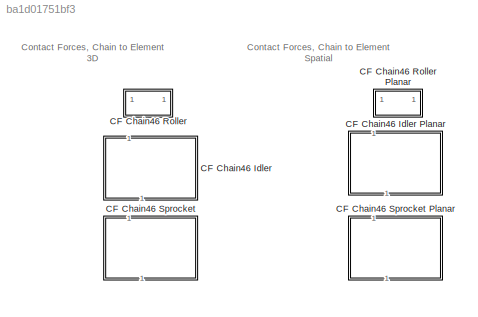
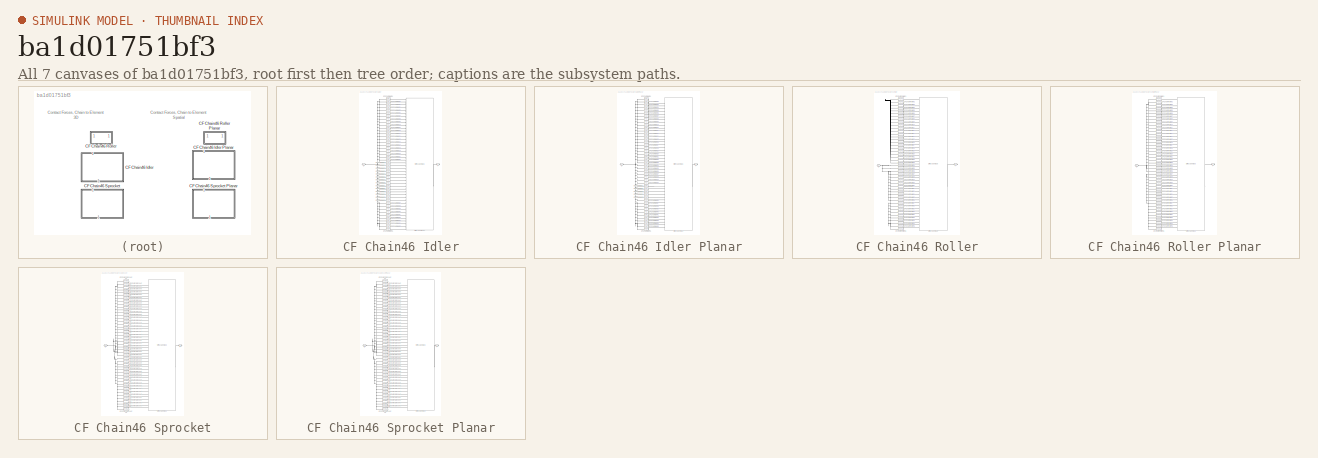
[diagram: thumbnail index - all 7 canvases of the model, root first then tree order]
MODEL slx_ba1d01751bf3
KIND library
CONFIG SolverName = VariableStepAuto
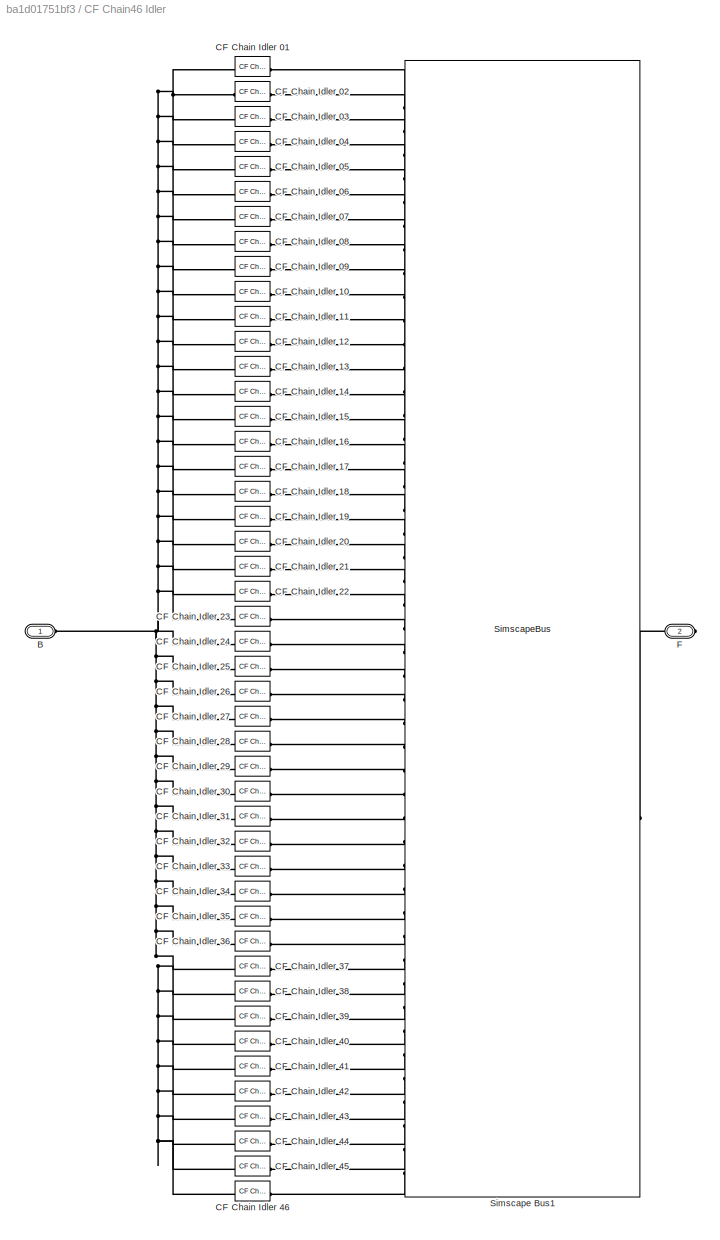
BLOCK [SubSystem] CF Chain46 Idler
  NameLocation = right
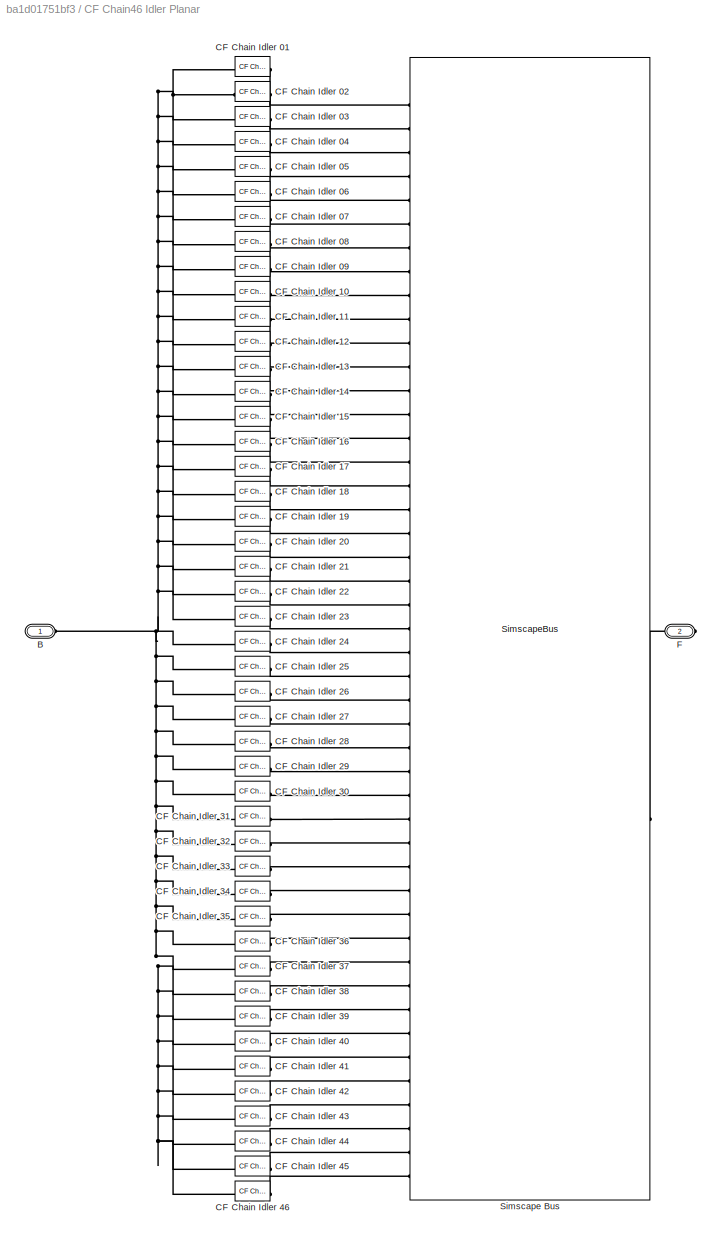
BLOCK [SubSystem] CF Chain46 Idler Planar
  NameLocation = right
BLOCK [PMIOPort] CF Chain46 Idler Planar/B
  Side = Left
BLOCK [Reference] CF Chain46 Idler Planar/CF Chain Idler 01  REF=sm_trackV_lib_chain_contact/CF Chain Idler Planar
  NameLocation = right
  SourceBlock = sm_trackV_lib_chain_contact/CF Chain Idler Planar
  SourceType = Contact Force Between Chain and Idler
BLOCK [Reference] CF Chain46 Idler Planar/CF Chain Idler 02  REF=sm_trackV_lib_chain_contact/CF Chain Idler Planar
  NameLocation = right
  SourceBlock = sm_trackV_lib_chain_contact/CF Chain Idler Planar
  SourceType = Contact Force Between Chain and Idler
BLOCK [Reference] CF Chain46 Idler Planar/CF Chain Idler 03  REF=sm_trackV_lib_chain_contact/CF Chain Idler Planar
  NameLocation = right
  SourceBlock = sm_trackV_lib_chain_contact/CF Chain Idler Planar
  SourceType = Contact Force Between Chain and Idler
BLOCK [Reference] CF Chain46 Idler Planar/CF Chain Idler 04  REF=sm_trackV_lib_chain_contact/CF Chain Idler Planar
  NameLocation = right
  SourceBlock = sm_trackV_lib_chain_contact/CF Chain Idler Planar
  SourceType = Contact Force Between Chain and Idler
BLOCK [Reference] CF Chain46 Idler Planar/CF Chain Idler 05  REF=sm_trackV_lib_chain_contact/CF Chain Idler Planar
  NameLocation = right
  SourceBlock = sm_trackV_lib_chain_contact/CF Chain Idler Planar
  SourceType = Contact Force Between Chain and Idler
BLOCK [Reference] CF Chain46 Idler Planar/CF Chain Idler 06  REF=sm_trackV_lib_chain_contact/CF Chain Idler Planar
  NameLocation = right
  SourceBlock = sm_trackV_lib_chain_contact/CF Chain Idler Planar
  SourceType = Contact Force Between Chain and Idler
BLOCK [Reference] CF Chain46 Idler Planar/CF Chain Idler 07  REF=sm_trackV_lib_chain_contact/CF Chain Idler Planar
  NameLocation = right
  SourceBlock = sm_trackV_lib_chain_contact/CF Chain Idler Planar
  SourceType = Contact Force Between Chain and Idler
BLOCK [Reference] CF Chain46 Idler Planar/CF Chain Idler 08  REF=sm_trackV_lib_chain_contact/CF Chain Idler Planar
  NameLocation = right
  SourceBlock = sm_trackV_lib_chain_contact/CF Chain Idler Planar
  SourceType = Contact Force Between Chain and Idler
BLOCK [Reference] CF Chain46 Idler Planar/CF Chain Idler 09  REF=sm_trackV_lib_chain_contact/CF Chain Idler Planar
  NameLocation = right
  SourceBlock = sm_trackV_lib_chain_contact/CF Chain Idler Planar
  SourceType = Contact Force Between Chain and Idler
BLOCK [Reference] CF Chain46 Idler Planar/CF Chain Idler 10  REF=sm_trackV_lib_chain_contact/CF Chain Idler Planar
  NameLocation = right
  SourceBlock = sm_trackV_lib_chain_contact/CF Chain Idler Planar
  SourceType = Contact Force Between Chain and Idler
BLOCK [Reference] CF Chain46 Idler Planar/CF Chain Idler 11  REF=sm_trackV_lib_chain_contact/CF Chain Idler Planar
  NameLocation = right
  SourceBlock = sm_trackV_lib_chain_contact/CF Chain Idler Planar
  SourceType = Contact Force Between Chain and Idler
BLOCK [Reference] CF Chain46 Idler Planar/CF Chain Idler 12  REF=sm_trackV_lib_chain_contact/CF Chain Idler Planar
  NameLocation = right
  SourceBlock = sm_trackV_lib_chain_contact/CF Chain Idler Planar
  SourceType = Contact Force Between Chain and Idler
BLOCK [Reference] CF Chain46 Idler Planar/CF Chain Idler 13  REF=sm_trackV_lib_chain_contact/CF Chain Idler Planar
  NameLocation = right
  SourceBlock = sm_trackV_lib_chain_contact/CF Chain Idler Planar
  SourceType = Contact Force Between Chain and Idler
BLOCK [Reference] CF Chain46 Idler Planar/CF Chain Idler 14  REF=sm_trackV_lib_chain_contact/CF Chain Idler Planar
  NameLocation = right
  SourceBlock = sm_trackV_lib_chain_contact/CF Chain Idler Planar
  SourceType = Contact Force Between Chain and Idler
BLOCK [Reference] CF Chain46 Idler Planar/CF Chain Idler 15  REF=sm_trackV_lib_chain_contact/CF Chain Idler Planar
  NameLocation = right
  SourceBlock = sm_trackV_lib_chain_contact/CF Chain Idler Planar
  SourceType = Contact Force Between Chain and Idler
BLOCK [Reference] CF Chain46 Idler Planar/CF Chain Idler 16  REF=sm_trackV_lib_chain_contact/CF Chain Idler Planar
  NameLocation = right
  SourceBlock = sm_trackV_lib_chain_contact/CF Chain Idler Planar
  SourceType = Contact Force Between Chain and Idler
BLOCK [Reference] CF Chain46 Idler Planar/CF Chain Idler 17  REF=sm_trackV_lib_chain_contact/CF Chain Idler Planar
  NameLocation = right
  SourceBlock = sm_trackV_lib_chain_contact/CF Chain Idler Planar
  SourceType = Contact Force Between Chain and Idler
BLOCK [Reference] CF Chain46 Idler Planar/CF Chain Idler 18  REF=sm_trackV_lib_chain_contact/CF Chain Idler Planar
  NameLocation = right
  SourceBlock = sm_trackV_lib_chain_contact/CF Chain Idler Planar
  SourceType = Contact Force Between Chain and Idler
BLOCK [Reference] CF Chain46 Idler Planar/CF Chain Idler 19  REF=sm_trackV_lib_chain_contact/CF Chain Idler Planar
  NameLocation = right
  SourceBlock = sm_trackV_lib_chain_contact/CF Chain Idler Planar
  SourceType = Contact Force Between Chain and Idler
BLOCK [Reference] CF Chain46 Idler Planar/CF Chain Idler 20  REF=sm_trackV_lib_chain_contact/CF Chain Idler Planar
  NameLocation = right
  SourceBlock = sm_trackV_lib_chain_contact/CF Chain Idler Planar
  SourceType = Contact Force Between Chain and Idler
BLOCK [Reference] CF Chain46 Idler Planar/CF Chain Idler 21  REF=sm_trackV_lib_chain_contact/CF Chain Idler Planar
  NameLocation = right
  SourceBlock = sm_trackV_lib_chain_contact/CF Chain Idler Planar
  SourceType = Contact Force Between Chain and Idler
BLOCK [Reference] CF Chain46 Idler Planar/CF Chain Idler 22  REF=sm_trackV_lib_chain_contact/CF Chain Idler Planar
  NameLocation = right
  SourceBlock = sm_trackV_lib_chain_contact/CF Chain Idler Planar
  SourceType = Contact Force Between Chain and Idler
BLOCK [Reference] CF Chain46 Idler Planar/CF Chain Idler 23  REF=sm_trackV_lib_chain_contact/CF Chain Idler Planar
  NameLocation = right
  SourceBlock = sm_trackV_lib_chain_contact/CF Chain Idler Planar
  SourceType = Contact Force Between Chain and Idler
BLOCK [Reference] CF Chain46 Idler Planar/CF Chain Idler 24  REF=sm_trackV_lib_chain_contact/CF Chain Idler Planar
  NameLocation = right
  SourceBlock = sm_trackV_lib_chain_contact/CF Chain Idler Planar
  SourceType = Contact Force Between Chain and Idler
BLOCK [Reference] CF Chain46 Idler Planar/CF Chain Idler 25  REF=sm_trackV_lib_chain_contact/CF Chain Idler Planar
  NameLocation = right
  SourceBlock = sm_trackV_lib_chain_contact/CF Chain Idler Planar
  SourceType = Contact Force Between Chain and Idler
BLOCK [Reference] CF Chain46 Idler Planar/CF Chain Idler 26  REF=sm_trackV_lib_chain_contact/CF Chain Idler Planar
  NameLocation = right
  SourceBlock = sm_trackV_lib_chain_contact/CF Chain Idler Planar
  SourceType = Contact Force Between Chain and Idler
BLOCK [Reference] CF Chain46 Idler Planar/CF Chain Idler 27  REF=sm_trackV_lib_chain_contact/CF Chain Idler Planar
  NameLocation = right
  SourceBlock = sm_trackV_lib_chain_contact/CF Chain Idler Planar
  SourceType = Contact Force Between Chain and Idler
BLOCK [Reference] CF Chain46 Idler Planar/CF Chain Idler 28  REF=sm_trackV_lib_chain_contact/CF Chain Idler Planar
  NameLocation = right
  SourceBlock = sm_trackV_lib_chain_contact/CF Chain Idler Planar
  SourceType = Contact Force Between Chain and Idler
BLOCK [Reference] CF Chain46 Idler Planar/CF Chain Idler 29  REF=sm_trackV_lib_chain_contact/CF Chain Idler Planar
  NameLocation = right
  SourceBlock = sm_trackV_lib_chain_contact/CF Chain Idler Planar
  SourceType = Contact Force Between Chain and Idler
BLOCK [Reference] CF Chain46 Idler Planar/CF Chain Idler 30  REF=sm_trackV_lib_chain_contact/CF Chain Idler Planar
  NameLocation = right
  SourceBlock = sm_trackV_lib_chain_contact/CF Chain Idler Planar
  SourceType = Contact Force Between Chain and Idler
BLOCK [Reference] CF Chain46 Idler Planar/CF Chain Idler 31  REF=sm_trackV_lib_chain_contact/CF Chain Idler Planar
  NameLocation = right
  SourceBlock = sm_trackV_lib_chain_contact/CF Chain Idler Planar
  SourceType = Contact Force Between Chain and Idler
BLOCK [Reference] CF Chain46 Idler Planar/CF Chain Idler 32  REF=sm_trackV_lib_chain_contact/CF Chain Idler Planar
  NameLocation = right
  SourceBlock = sm_trackV_lib_chain_contact/CF Chain Idler Planar
  SourceType = Contact Force Between Chain and Idler
BLOCK [Reference] CF Chain46 Idler Planar/CF Chain Idler 33  REF=sm_trackV_lib_chain_contact/CF Chain Idler Planar
  NameLocation = right
  SourceBlock = sm_trackV_lib_chain_contact/CF Chain Idler Planar
  SourceType = Contact Force Between Chain and Idler
BLOCK [Reference] CF Chain46 Idler Planar/CF Chain Idler 34  REF=sm_trackV_lib_chain_contact/CF Chain Idler Planar
  NameLocation = right
  SourceBlock = sm_trackV_lib_chain_contact/CF Chain Idler Planar
  SourceType = Contact Force Between Chain and Idler
BLOCK [Reference] CF Chain46 Idler Planar/CF Chain Idler 35  REF=sm_trackV_lib_chain_contact/CF Chain Idler Planar
  NameLocation = right
  SourceBlock = sm_trackV_lib_chain_contact/CF Chain Idler Planar
  SourceType = Contact Force Between Chain and Idler
BLOCK [Reference] CF Chain46 Idler Planar/CF Chain Idler 36  REF=sm_trackV_lib_chain_contact/CF Chain Idler Planar
  NameLocation = right
  SourceBlock = sm_trackV_lib_chain_contact/CF Chain Idler Planar
  SourceType = Contact Force Between Chain and Idler
BLOCK [Reference] CF Chain46 Idler Planar/CF Chain Idler 37  REF=sm_trackV_lib_chain_contact/CF Chain Idler Planar
  NameLocation = right
  SourceBlock = sm_trackV_lib_chain_contact/CF Chain Idler Planar
  SourceType = Contact Force Between Chain and Idler
BLOCK [Reference] CF Chain46 Idler Planar/CF Chain Idler 38  REF=sm_trackV_lib_chain_contact/CF Chain Idler Planar
  NameLocation = right
  SourceBlock = sm_trackV_lib_chain_contact/CF Chain Idler Planar
  SourceType = Contact Force Between Chain and Idler
BLOCK [Reference] CF Chain46 Idler Planar/CF Chain Idler 39  REF=sm_trackV_lib_chain_contact/CF Chain Idler Planar
  NameLocation = right
  SourceBlock = sm_trackV_lib_chain_contact/CF Chain Idler Planar
  SourceType = Contact Force Between Chain and Idler
BLOCK [Reference] CF Chain46 Idler Planar/CF Chain Idler 40  REF=sm_trackV_lib_chain_contact/CF Chain Idler Planar
  NameLocation = right
  SourceBlock = sm_trackV_lib_chain_contact/CF Chain Idler Planar
  SourceType = Contact Force Between Chain and Idler
BLOCK [Reference] CF Chain46 Idler Planar/CF Chain Idler 41  REF=sm_trackV_lib_chain_contact/CF Chain Idler Planar
  NameLocation = right
  SourceBlock = sm_trackV_lib_chain_contact/CF Chain Idler Planar
  SourceType = Contact Force Between Chain and Idler
BLOCK [Reference] CF Chain46 Idler Planar/CF Chain Idler 42  REF=sm_trackV_lib_chain_contact/CF Chain Idler Planar
  NameLocation = right
  SourceBlock = sm_trackV_lib_chain_contact/CF Chain Idler Planar
  SourceType = Contact Force Between Chain and Idler
BLOCK [Reference] CF Chain46 Idler Planar/CF Chain Idler 43  REF=sm_trackV_lib_chain_contact/CF Chain Idler Planar
  NameLocation = right
  SourceBlock = sm_trackV_lib_chain_contact/CF Chain Idler Planar
  SourceType = Contact Force Between Chain and Idler
BLOCK [Reference] CF Chain46 Idler Planar/CF Chain Idler 44  REF=sm_trackV_lib_chain_contact/CF Chain Idler Planar
  NameLocation = right
  SourceBlock = sm_trackV_lib_chain_contact/CF Chain Idler Planar
  SourceType = Contact Force Between Chain and Idler
BLOCK [Reference] CF Chain46 Idler Planar/CF Chain Idler 45  REF=sm_trackV_lib_chain_contact/CF Chain Idler Planar
  NameLocation = right
  SourceBlock = sm_trackV_lib_chain_contact/CF Chain Idler Planar
  SourceType = Contact Force Between Chain and Idler
BLOCK [Reference] CF Chain46 Idler Planar/CF Chain Idler 46  REF=sm_trackV_lib_chain_contact/CF Chain Idler Planar
  NameLocation = right
  SourceBlock = sm_trackV_lib_chain_contact/CF Chain Idler Planar
  SourceType = Contact Force Between Chain and Idler
BLOCK [PMIOPort] CF Chain46 Idler Planar/F
  Port = 2
  Side = Right
BLOCK [SimscapeBus] CF Chain46 Idler Planar/Simscape Bus
  ConnectionType = Bus: CBO_Chain46
  HierarchyStrings = L1;L2;L3;L4;L5;L6;L7;L8;L9;L10;L11;L12;L13;L14;L15;L16;L17;L18;L19;L20;L21;L22;L23;L24;L25;L26;L27;L28;L29;L30;L31;L32;L33;L34;L35;L36;L37;L38;L39;L40;L41;L42;L43;L44;L45;L46
BLOCK [PMIOPort] CF Chain46 Idler/B
  Side = Left
BLOCK [Reference] CF Chain46 Idler/CF Chain Idler 01  REF=sm_trackV_lib_chain_contact/CF Chain
Idler
  LibrarySourceBlock = sm_chain_drive_lib/CF_Idler
  NameLocation = right
  SourceBlock = sm_trackV_lib_chain_contact/CF Chain\nIdler
  SourceType = Contact Force Between Chain and Idler
BLOCK [Reference] CF Chain46 Idler/CF Chain Idler 02  REF=sm_trackV_lib_chain_contact/CF Chain
Idler
  LibrarySourceBlock = sm_chain_drive_lib/CF_Idler
  NameLocation = right
  SourceBlock = sm_trackV_lib_chain_contact/CF Chain\nIdler
  SourceType = Contact Force Between Chain and Idler
BLOCK [Reference] CF Chain46 Idler/CF Chain Idler 03  REF=sm_trackV_lib_chain_contact/CF Chain
Idler
  LibrarySourceBlock = sm_chain_drive_lib/CF_Idler
  NameLocation = right
  SourceBlock = sm_trackV_lib_chain_contact/CF Chain\nIdler
  SourceType = Contact Force Between Chain and Idler
BLOCK [Reference] CF Chain46 Idler/CF Chain Idler 04  REF=sm_trackV_lib_chain_contact/CF Chain
Idler
  LibrarySourceBlock = sm_chain_drive_lib/CF_Idler
  NameLocation = right
  SourceBlock = sm_trackV_lib_chain_contact/CF Chain\nIdler
  SourceType = Contact Force Between Chain and Idler
BLOCK [Reference] CF Chain46 Idler/CF Chain Idler 05  REF=sm_trackV_lib_chain_contact/CF Chain
Idler
  LibrarySourceBlock = sm_chain_drive_lib/CF_Idler
  NameLocation = right
  SourceBlock = sm_trackV_lib_chain_contact/CF Chain\nIdler
  SourceType = Contact Force Between Chain and Idler
BLOCK [Reference] CF Chain46 Idler/CF Chain Idler 06  REF=sm_trackV_lib_chain_contact/CF Chain
Idler
  LibrarySourceBlock = sm_chain_drive_lib/CF_Idler
  NameLocation = right
  SourceBlock = sm_trackV_lib_chain_contact/CF Chain\nIdler
  SourceType = Contact Force Between Chain and Idler
BLOCK [Reference] CF Chain46 Idler/CF Chain Idler 07  REF=sm_trackV_lib_chain_contact/CF Chain
Idler
  LibrarySourceBlock = sm_chain_drive_lib/CF_Idler
  NameLocation = right
  SourceBlock = sm_trackV_lib_chain_contact/CF Chain\nIdler
  SourceType = Contact Force Between Chain and Idler
BLOCK [Reference] CF Chain46 Idler/CF Chain Idler 08  REF=sm_trackV_lib_chain_contact/CF Chain
Idler
  LibrarySourceBlock = sm_chain_drive_lib/CF_Idler
  NameLocation = right
  SourceBlock = sm_trackV_lib_chain_contact/CF Chain\nIdler
  SourceType = Contact Force Between Chain and Idler
BLOCK [Reference] CF Chain46 Idler/CF Chain Idler 09  REF=sm_trackV_lib_chain_contact/CF Chain
Idler
  LibrarySourceBlock = sm_chain_drive_lib/CF_Idler
  NameLocation = right
  SourceBlock = sm_trackV_lib_chain_contact/CF Chain\nIdler
  SourceType = Contact Force Between Chain and Idler
BLOCK [Reference] CF Chain46 Idler/CF Chain Idler 10  REF=sm_trackV_lib_chain_contact/CF Chain
Idler
  LibrarySourceBlock = sm_chain_drive_lib/CF_Idler
  NameLocation = right
  SourceBlock = sm_trackV_lib_chain_contact/CF Chain\nIdler
  SourceType = Contact Force Between Chain and Idler
BLOCK [Reference] CF Chain46 Idler/CF Chain Idler 11  REF=sm_trackV_lib_chain_contact/CF Chain
Idler
  LibrarySourceBlock = sm_chain_drive_lib/CF_Idler
  NameLocation = right
  SourceBlock = sm_trackV_lib_chain_contact/CF Chain\nIdler
  SourceType = Contact Force Between Chain and Idler
BLOCK [Reference] CF Chain46 Idler/CF Chain Idler 12  REF=sm_trackV_lib_chain_contact/CF Chain
Idler
  LibrarySourceBlock = sm_chain_drive_lib/CF_Idler
  NameLocation = right
  SourceBlock = sm_trackV_lib_chain_contact/CF Chain\nIdler
  SourceType = Contact Force Between Chain and Idler
BLOCK [Reference] CF Chain46 Idler/CF Chain Idler 13  REF=sm_trackV_lib_chain_contact/CF Chain
Idler
  LibrarySourceBlock = sm_chain_drive_lib/CF_Idler
  NameLocation = right
  SourceBlock = sm_trackV_lib_chain_contact/CF Chain\nIdler
  SourceType = Contact Force Between Chain and Idler
BLOCK [Reference] CF Chain46 Idler/CF Chain Idler 14  REF=sm_trackV_lib_chain_contact/CF Chain
Idler
  LibrarySourceBlock = sm_chain_drive_lib/CF_Idler
  NameLocation = right
  SourceBlock = sm_trackV_lib_chain_contact/CF Chain\nIdler
  SourceType = Contact Force Between Chain and Idler
BLOCK [Reference] CF Chain46 Idler/CF Chain Idler 15  REF=sm_trackV_lib_chain_contact/CF Chain
Idler
  LibrarySourceBlock = sm_chain_drive_lib/CF_Idler
  NameLocation = right
  SourceBlock = sm_trackV_lib_chain_contact/CF Chain\nIdler
  SourceType = Contact Force Between Chain and Idler
BLOCK [Reference] CF Chain46 Idler/CF Chain Idler 16  REF=sm_trackV_lib_chain_contact/CF Chain
Idler
  LibrarySourceBlock = sm_chain_drive_lib/CF_Idler
  NameLocation = right
  SourceBlock = sm_trackV_lib_chain_contact/CF Chain\nIdler
  SourceType = Contact Force Between Chain and Idler
BLOCK [Reference] CF Chain46 Idler/CF Chain Idler 17  REF=sm_trackV_lib_chain_contact/CF Chain
Idler
  LibrarySourceBlock = sm_chain_drive_lib/CF_Idler
  NameLocation = right
  SourceBlock = sm_trackV_lib_chain_contact/CF Chain\nIdler
  SourceType = Contact Force Between Chain and Idler
BLOCK [Reference] CF Chain46 Idler/CF Chain Idler 18  REF=sm_trackV_lib_chain_contact/CF Chain
Idler
  LibrarySourceBlock = sm_chain_drive_lib/CF_Idler
  NameLocation = right
  SourceBlock = sm_trackV_lib_chain_contact/CF Chain\nIdler
  SourceType = Contact Force Between Chain and Idler
BLOCK [Reference] CF Chain46 Idler/CF Chain Idler 19  REF=sm_trackV_lib_chain_contact/CF Chain
Idler
  LibrarySourceBlock = sm_chain_drive_lib/CF_Idler
  NameLocation = right
  SourceBlock = sm_trackV_lib_chain_contact/CF Chain\nIdler
  SourceType = Contact Force Between Chain and Idler
BLOCK [Reference] CF Chain46 Idler/CF Chain Idler 20  REF=sm_trackV_lib_chain_contact/CF Chain
Idler
  LibrarySourceBlock = sm_chain_drive_lib/CF_Idler
  NameLocation = right
  SourceBlock = sm_trackV_lib_chain_contact/CF Chain\nIdler
  SourceType = Contact Force Between Chain and Idler
BLOCK [Reference] CF Chain46 Idler/CF Chain Idler 21  REF=sm_trackV_lib_chain_contact/CF Chain
Idler
  LibrarySourceBlock = sm_chain_drive_lib/CF_Idler
  NameLocation = right
  SourceBlock = sm_trackV_lib_chain_contact/CF Chain\nIdler
  SourceType = Contact Force Between Chain and Idler
BLOCK [Reference] CF Chain46 Idler/CF Chain Idler 22  REF=sm_trackV_lib_chain_contact/CF Chain
Idler
  LibrarySourceBlock = sm_chain_drive_lib/CF_Idler
  NameLocation = right
  SourceBlock = sm_trackV_lib_chain_contact/CF Chain\nIdler
  SourceType = Contact Force Between Chain and Idler
BLOCK [Reference] CF Chain46 Idler/CF Chain Idler 23  REF=sm_trackV_lib_chain_contact/CF Chain
Idler
  LibrarySourceBlock = sm_chain_drive_lib/CF_Idler
  NameLocation = right
  SourceBlock = sm_trackV_lib_chain_contact/CF Chain\nIdler
  SourceType = Contact Force Between Chain and Idler
BLOCK [Reference] CF Chain46 Idler/CF Chain Idler 24  REF=sm_trackV_lib_chain_contact/CF Chain
Idler
  LibrarySourceBlock = sm_chain_drive_lib/CF_Idler
  NameLocation = right
  SourceBlock = sm_trackV_lib_chain_contact/CF Chain\nIdler
  SourceType = Contact Force Between Chain and Idler
BLOCK [Reference] CF Chain46 Idler/CF Chain Idler 25  REF=sm_trackV_lib_chain_contact/CF Chain
Idler
  LibrarySourceBlock = sm_chain_drive_lib/CF_Idler
  NameLocation = right
  SourceBlock = sm_trackV_lib_chain_contact/CF Chain\nIdler
  SourceType = Contact Force Between Chain and Idler
BLOCK [Reference] CF Chain46 Idler/CF Chain Idler 26  REF=sm_trackV_lib_chain_contact/CF Chain
Idler
  LibrarySourceBlock = sm_chain_drive_lib/CF_Idler
  NameLocation = right
  SourceBlock = sm_trackV_lib_chain_contact/CF Chain\nIdler
  SourceType = Contact Force Between Chain and Idler
BLOCK [Reference] CF Chain46 Idler/CF Chain Idler 27  REF=sm_trackV_lib_chain_contact/CF Chain
Idler
  LibrarySourceBlock = sm_chain_drive_lib/CF_Idler
  NameLocation = right
  SourceBlock = sm_trackV_lib_chain_contact/CF Chain\nIdler
  SourceType = Contact Force Between Chain and Idler
BLOCK [Reference] CF Chain46 Idler/CF Chain Idler 28  REF=sm_trackV_lib_chain_contact/CF Chain
Idler
  LibrarySourceBlock = sm_chain_drive_lib/CF_Idler
  NameLocation = right
  SourceBlock = sm_trackV_lib_chain_contact/CF Chain\nIdler
  SourceType = Contact Force Between Chain and Idler
BLOCK [Reference] CF Chain46 Idler/CF Chain Idler 29  REF=sm_trackV_lib_chain_contact/CF Chain
Idler
  LibrarySourceBlock = sm_chain_drive_lib/CF_Idler
  NameLocation = right
  SourceBlock = sm_trackV_lib_chain_contact/CF Chain\nIdler
  SourceType = Contact Force Between Chain and Idler
BLOCK [Reference] CF Chain46 Idler/CF Chain Idler 30  REF=sm_trackV_lib_chain_contact/CF Chain
Idler
  LibrarySourceBlock = sm_chain_drive_lib/CF_Idler
  NameLocation = right
  SourceBlock = sm_trackV_lib_chain_contact/CF Chain\nIdler
  SourceType = Contact Force Between Chain and Idler
BLOCK [Reference] CF Chain46 Idler/CF Chain Idler 31  REF=sm_trackV_lib_chain_contact/CF Chain
Idler
  LibrarySourceBlock = sm_chain_drive_lib/CF_Idler
  NameLocation = right
  SourceBlock = sm_trackV_lib_chain_contact/CF Chain\nIdler
  SourceType = Contact Force Between Chain and Idler
BLOCK [Reference] CF Chain46 Idler/CF Chain Idler 32  REF=sm_trackV_lib_chain_contact/CF Chain
Idler
  LibrarySourceBlock = sm_chain_drive_lib/CF_Idler
  NameLocation = right
  SourceBlock = sm_trackV_lib_chain_contact/CF Chain\nIdler
  SourceType = Contact Force Between Chain and Idler
BLOCK [Reference] CF Chain46 Idler/CF Chain Idler 33  REF=sm_trackV_lib_chain_contact/CF Chain
Idler
  LibrarySourceBlock = sm_chain_drive_lib/CF_Idler
  NameLocation = right
  SourceBlock = sm_trackV_lib_chain_contact/CF Chain\nIdler
  SourceType = Contact Force Between Chain and Idler
BLOCK [Reference] CF Chain46 Idler/CF Chain Idler 34  REF=sm_trackV_lib_chain_contact/CF Chain
Idler
  LibrarySourceBlock = sm_chain_drive_lib/CF_Idler
  NameLocation = right
  SourceBlock = sm_trackV_lib_chain_contact/CF Chain\nIdler
  SourceType = Contact Force Between Chain and Idler
BLOCK [Reference] CF Chain46 Idler/CF Chain Idler 35  REF=sm_trackV_lib_chain_contact/CF Chain
Idler
  LibrarySourceBlock = sm_chain_drive_lib/CF_Idler
  NameLocation = right
  SourceBlock = sm_trackV_lib_chain_contact/CF Chain\nIdler
  SourceType = Contact Force Between Chain and Idler
BLOCK [Reference] CF Chain46 Idler/CF Chain Idler 36  REF=sm_trackV_lib_chain_contact/CF Chain
Idler
  LibrarySourceBlock = sm_chain_drive_lib/CF_Idler
  NameLocation = right
  SourceBlock = sm_trackV_lib_chain_contact/CF Chain\nIdler
  SourceType = Contact Force Between Chain and Idler
BLOCK [Reference] CF Chain46 Idler/CF Chain Idler 37  REF=sm_trackV_lib_chain_contact/CF Chain
Idler
  LibrarySourceBlock = sm_chain_drive_lib/CF_Idler
  NameLocation = right
  SourceBlock = sm_trackV_lib_chain_contact/CF Chain\nIdler
  SourceType = Contact Force Between Chain and Idler
BLOCK [Reference] CF Chain46 Idler/CF Chain Idler 38  REF=sm_trackV_lib_chain_contact/CF Chain
Idler
  LibrarySourceBlock = sm_chain_drive_lib/CF_Idler
  NameLocation = right
  SourceBlock = sm_trackV_lib_chain_contact/CF Chain\nIdler
  SourceType = Contact Force Between Chain and Idler
BLOCK [Reference] CF Chain46 Idler/CF Chain Idler 39  REF=sm_trackV_lib_chain_contact/CF Chain
Idler
  LibrarySourceBlock = sm_chain_drive_lib/CF_Idler
  NameLocation = right
  SourceBlock = sm_trackV_lib_chain_contact/CF Chain\nIdler
  SourceType = Contact Force Between Chain and Idler
BLOCK [Reference] CF Chain46 Idler/CF Chain Idler 40  REF=sm_trackV_lib_chain_contact/CF Chain
Idler
  LibrarySourceBlock = sm_chain_drive_lib/CF_Idler
  NameLocation = right
  SourceBlock = sm_trackV_lib_chain_contact/CF Chain\nIdler
  SourceType = Contact Force Between Chain and Idler
BLOCK [Reference] CF Chain46 Idler/CF Chain Idler 41  REF=sm_trackV_lib_chain_contact/CF Chain
Idler
  LibrarySourceBlock = sm_chain_drive_lib/CF_Idler
  NameLocation = right
  SourceBlock = sm_trackV_lib_chain_contact/CF Chain\nIdler
  SourceType = Contact Force Between Chain and Idler
BLOCK [Reference] CF Chain46 Idler/CF Chain Idler 42  REF=sm_trackV_lib_chain_contact/CF Chain
Idler
  LibrarySourceBlock = sm_chain_drive_lib/CF_Idler
  NameLocation = right
  SourceBlock = sm_trackV_lib_chain_contact/CF Chain\nIdler
  SourceType = Contact Force Between Chain and Idler
BLOCK [Reference] CF Chain46 Idler/CF Chain Idler 43  REF=sm_trackV_lib_chain_contact/CF Chain
Idler
  LibrarySourceBlock = sm_chain_drive_lib/CF_Idler
  NameLocation = right
  SourceBlock = sm_trackV_lib_chain_contact/CF Chain\nIdler
  SourceType = Contact Force Between Chain and Idler
BLOCK [Reference] CF Chain46 Idler/CF Chain Idler 44  REF=sm_trackV_lib_chain_contact/CF Chain
Idler
  LibrarySourceBlock = sm_chain_drive_lib/CF_Idler
  NameLocation = right
  SourceBlock = sm_trackV_lib_chain_contact/CF Chain\nIdler
  SourceType = Contact Force Between Chain and Idler
BLOCK [Reference] CF Chain46 Idler/CF Chain Idler 45  REF=sm_trackV_lib_chain_contact/CF Chain
Idler
  LibrarySourceBlock = sm_chain_drive_lib/CF_Idler
  NameLocation = right
  SourceBlock = sm_trackV_lib_chain_contact/CF Chain\nIdler
  SourceType = Contact Force Between Chain and Idler
BLOCK [Reference] CF Chain46 Idler/CF Chain Idler 46  REF=sm_trackV_lib_chain_contact/CF Chain
Idler
  LibrarySourceBlock = sm_chain_drive_lib/CF_Idler
  NameLocation = right
  SourceBlock = sm_trackV_lib_chain_contact/CF Chain\nIdler
  SourceType = Contact Force Between Chain and Idler
BLOCK [PMIOPort] CF Chain46 Idler/F
  Port = 2
  Side = Right
BLOCK [SimscapeBus] CF Chain46 Idler/Simscape Bus1
  ConnectionType = Bus: CBO_Chain46
  HierarchyStrings = L1;L2;L3;L4;L5;L6;L7;L8;L9;L10;L11;L12;L13;L14;L15;L16;L17;L18;L19;L20;L21;L22;L23;L24;L25;L26;L27;L28;L29;L30;L31;L32;L33;L34;L35;L36;L37;L38;L39;L40;L41;L42;L43;L44;L45;L46
BLOCK [SubSystem] CF Chain46 Roller
  NameLocation = right
BLOCK [SubSystem] CF Chain46 Roller Planar
  NameLocation = right
BLOCK [PMIOPort] CF Chain46 Roller Planar/B
  Side = Left
BLOCK [Reference] CF Chain46 Roller Planar/CF Chain Roller 01  REF=sm_trackV_lib_chain_contact/CF Chain Roller Planar
  NameLocation = right
  SourceBlock = sm_trackV_lib_chain_contact/CF Chain Roller Planar
  SourceType = Contact Force between Chain and Roller
BLOCK [Reference] CF Chain46 Roller Planar/CF Chain Roller 02  REF=sm_trackV_lib_chain_contact/CF Chain Roller Planar
  NameLocation = right
  SourceBlock = sm_trackV_lib_chain_contact/CF Chain Roller Planar
  SourceType = Contact Force between Chain and Roller
BLOCK [Reference] CF Chain46 Roller Planar/CF Chain Roller 03  REF=sm_trackV_lib_chain_contact/CF Chain Roller Planar
  NameLocation = right
  SourceBlock = sm_trackV_lib_chain_contact/CF Chain Roller Planar
  SourceType = Contact Force between Chain and Roller
BLOCK [Reference] CF Chain46 Roller Planar/CF Chain Roller 04  REF=sm_trackV_lib_chain_contact/CF Chain Roller Planar
  NameLocation = right
  SourceBlock = sm_trackV_lib_chain_contact/CF Chain Roller Planar
  SourceType = Contact Force between Chain and Roller
BLOCK [Reference] CF Chain46 Roller Planar/CF Chain Roller 05  REF=sm_trackV_lib_chain_contact/CF Chain Roller Planar
  NameLocation = right
  SourceBlock = sm_trackV_lib_chain_contact/CF Chain Roller Planar
  SourceType = Contact Force between Chain and Roller
BLOCK [Reference] CF Chain46 Roller Planar/CF Chain Roller 06  REF=sm_trackV_lib_chain_contact/CF Chain Roller Planar
  NameLocation = right
  SourceBlock = sm_trackV_lib_chain_contact/CF Chain Roller Planar
  SourceType = Contact Force between Chain and Roller
BLOCK [Reference] CF Chain46 Roller Planar/CF Chain Roller 07  REF=sm_trackV_lib_chain_contact/CF Chain Roller Planar
  NameLocation = right
  SourceBlock = sm_trackV_lib_chain_contact/CF Chain Roller Planar
  SourceType = Contact Force between Chain and Roller
BLOCK [Reference] CF Chain46 Roller Planar/CF Chain Roller 08  REF=sm_trackV_lib_chain_contact/CF Chain Roller Planar
  NameLocation = right
  SourceBlock = sm_trackV_lib_chain_contact/CF Chain Roller Planar
  SourceType = Contact Force between Chain and Roller
BLOCK [Reference] CF Chain46 Roller Planar/CF Chain Roller 09  REF=sm_trackV_lib_chain_contact/CF Chain Roller Planar
  NameLocation = right
  SourceBlock = sm_trackV_lib_chain_contact/CF Chain Roller Planar
  SourceType = Contact Force between Chain and Roller
BLOCK [Reference] CF Chain46 Roller Planar/CF Chain Roller 10  REF=sm_trackV_lib_chain_contact/CF Chain Roller Planar
  NameLocation = right
  SourceBlock = sm_trackV_lib_chain_contact/CF Chain Roller Planar
  SourceType = Contact Force between Chain and Roller
BLOCK [Reference] CF Chain46 Roller Planar/CF Chain Roller 11  REF=sm_trackV_lib_chain_contact/CF Chain Roller Planar
  NameLocation = right
  SourceBlock = sm_trackV_lib_chain_contact/CF Chain Roller Planar
  SourceType = Contact Force between Chain and Roller
BLOCK [Reference] CF Chain46 Roller Planar/CF Chain Roller 12  REF=sm_trackV_lib_chain_contact/CF Chain Roller Planar
  NameLocation = right
  SourceBlock = sm_trackV_lib_chain_contact/CF Chain Roller Planar
  SourceType = Contact Force between Chain and Roller
BLOCK [Reference] CF Chain46 Roller Planar/CF Chain Roller 13  REF=sm_trackV_lib_chain_contact/CF Chain Roller Planar
  NameLocation = right
  SourceBlock = sm_trackV_lib_chain_contact/CF Chain Roller Planar
  SourceType = Contact Force between Chain and Roller
BLOCK [Reference] CF Chain46 Roller Planar/CF Chain Roller 14  REF=sm_trackV_lib_chain_contact/CF Chain Roller Planar
  NameLocation = right
  SourceBlock = sm_trackV_lib_chain_contact/CF Chain Roller Planar
  SourceType = Contact Force between Chain and Roller
BLOCK [Reference] CF Chain46 Roller Planar/CF Chain Roller 15  REF=sm_trackV_lib_chain_contact/CF Chain Roller Planar
  NameLocation = right
  SourceBlock = sm_trackV_lib_chain_contact/CF Chain Roller Planar
  SourceType = Contact Force between Chain and Roller
BLOCK [Reference] CF Chain46 Roller Planar/CF Chain Roller 16  REF=sm_trackV_lib_chain_contact/CF Chain Roller Planar
  NameLocation = right
  SourceBlock = sm_trackV_lib_chain_contact/CF Chain Roller Planar
  SourceType = Contact Force between Chain and Roller
BLOCK [Reference] CF Chain46 Roller Planar/CF Chain Roller 17  REF=sm_trackV_lib_chain_contact/CF Chain Roller Planar
  NameLocation = right
  SourceBlock = sm_trackV_lib_chain_contact/CF Chain Roller Planar
  SourceType = Contact Force between Chain and Roller
BLOCK [Reference] CF Chain46 Roller Planar/CF Chain Roller 18  REF=sm_trackV_lib_chain_contact/CF Chain Roller Planar
  NameLocation = right
  SourceBlock = sm_trackV_lib_chain_contact/CF Chain Roller Planar
  SourceType = Contact Force between Chain and Roller
BLOCK [Reference] CF Chain46 Roller Planar/CF Chain Roller 19  REF=sm_trackV_lib_chain_contact/CF Chain Roller Planar
  NameLocation = right
  SourceBlock = sm_trackV_lib_chain_contact/CF Chain Roller Planar
  SourceType = Contact Force between Chain and Roller
BLOCK [Reference] CF Chain46 Roller Planar/CF Chain Roller 20  REF=sm_trackV_lib_chain_contact/CF Chain Roller Planar
  NameLocation = right
  SourceBlock = sm_trackV_lib_chain_contact/CF Chain Roller Planar
  SourceType = Contact Force between Chain and Roller
BLOCK [Reference] CF Chain46 Roller Planar/CF Chain Roller 21  REF=sm_trackV_lib_chain_contact/CF Chain Roller Planar
  NameLocation = right
  SourceBlock = sm_trackV_lib_chain_contact/CF Chain Roller Planar
  SourceType = Contact Force between Chain and Roller
BLOCK [Reference] CF Chain46 Roller Planar/CF Chain Roller 22  REF=sm_trackV_lib_chain_contact/CF Chain Roller Planar
  NameLocation = right
  SourceBlock = sm_trackV_lib_chain_contact/CF Chain Roller Planar
  SourceType = Contact Force between Chain and Roller
BLOCK [Reference] CF Chain46 Roller Planar/CF Chain Roller 23  REF=sm_trackV_lib_chain_contact/CF Chain Roller Planar
  NameLocation = right
  SourceBlock = sm_trackV_lib_chain_contact/CF Chain Roller Planar
  SourceType = Contact Force between Chain and Roller
BLOCK [Reference] CF Chain46 Roller Planar/CF Chain Roller 24  REF=sm_trackV_lib_chain_contact/CF Chain Roller Planar
  NameLocation = right
  SourceBlock = sm_trackV_lib_chain_contact/CF Chain Roller Planar
  SourceType = Contact Force between Chain and Roller
BLOCK [Reference] CF Chain46 Roller Planar/CF Chain Roller 25  REF=sm_trackV_lib_chain_contact/CF Chain Roller Planar
  NameLocation = right
  SourceBlock = sm_trackV_lib_chain_contact/CF Chain Roller Planar
  SourceType = Contact Force between Chain and Roller
BLOCK [Reference] CF Chain46 Roller Planar/CF Chain Roller 26  REF=sm_trackV_lib_chain_contact/CF Chain Roller Planar
  NameLocation = right
  SourceBlock = sm_trackV_lib_chain_contact/CF Chain Roller Planar
  SourceType = Contact Force between Chain and Roller
BLOCK [Reference] CF Chain46 Roller Planar/CF Chain Roller 27  REF=sm_trackV_lib_chain_contact/CF Chain Roller Planar
  NameLocation = right
  SourceBlock = sm_trackV_lib_chain_contact/CF Chain Roller Planar
  SourceType = Contact Force between Chain and Roller
BLOCK [Reference] CF Chain46 Roller Planar/CF Chain Roller 28  REF=sm_trackV_lib_chain_contact/CF Chain Roller Planar
  NameLocation = right
  SourceBlock = sm_trackV_lib_chain_contact/CF Chain Roller Planar
  SourceType = Contact Force between Chain and Roller
BLOCK [Reference] CF Chain46 Roller Planar/CF Chain Roller 29  REF=sm_trackV_lib_chain_contact/CF Chain Roller Planar
  NameLocation = right
  SourceBlock = sm_trackV_lib_chain_contact/CF Chain Roller Planar
  SourceType = Contact Force between Chain and Roller
BLOCK [Reference] CF Chain46 Roller Planar/CF Chain Roller 30  REF=sm_trackV_lib_chain_contact/CF Chain Roller Planar
  NameLocation = right
  SourceBlock = sm_trackV_lib_chain_contact/CF Chain Roller Planar
  SourceType = Contact Force between Chain and Roller
BLOCK [Reference] CF Chain46 Roller Planar/CF Chain Roller 31  REF=sm_trackV_lib_chain_contact/CF Chain Roller Planar
  NameLocation = right
  SourceBlock = sm_trackV_lib_chain_contact/CF Chain Roller Planar
  SourceType = Contact Force between Chain and Roller
BLOCK [Reference] CF Chain46 Roller Planar/CF Chain Roller 32  REF=sm_trackV_lib_chain_contact/CF Chain Roller Planar
  NameLocation = right
  SourceBlock = sm_trackV_lib_chain_contact/CF Chain Roller Planar
  SourceType = Contact Force between Chain and Roller
BLOCK [Reference] CF Chain46 Roller Planar/CF Chain Roller 33  REF=sm_trackV_lib_chain_contact/CF Chain Roller Planar
  NameLocation = right
  SourceBlock = sm_trackV_lib_chain_contact/CF Chain Roller Planar
  SourceType = Contact Force between Chain and Roller
BLOCK [Reference] CF Chain46 Roller Planar/CF Chain Roller 34  REF=sm_trackV_lib_chain_contact/CF Chain Roller Planar
  NameLocation = right
  SourceBlock = sm_trackV_lib_chain_contact/CF Chain Roller Planar
  SourceType = Contact Force between Chain and Roller
BLOCK [Reference] CF Chain46 Roller Planar/CF Chain Roller 35  REF=sm_trackV_lib_chain_contact/CF Chain Roller Planar
  NameLocation = right
  SourceBlock = sm_trackV_lib_chain_contact/CF Chain Roller Planar
  SourceType = Contact Force between Chain and Roller
BLOCK [Reference] CF Chain46 Roller Planar/CF Chain Roller 36  REF=sm_trackV_lib_chain_contact/CF Chain Roller Planar
  NameLocation = right
  SourceBlock = sm_trackV_lib_chain_contact/CF Chain Roller Planar
  SourceType = Contact Force between Chain and Roller
BLOCK [Reference] CF Chain46 Roller Planar/CF Chain Roller 37  REF=sm_trackV_lib_chain_contact/CF Chain Roller Planar
  NameLocation = right
  SourceBlock = sm_trackV_lib_chain_contact/CF Chain Roller Planar
  SourceType = Contact Force between Chain and Roller
BLOCK [Reference] CF Chain46 Roller Planar/CF Chain Roller 38  REF=sm_trackV_lib_chain_contact/CF Chain Roller Planar
  NameLocation = right
  SourceBlock = sm_trackV_lib_chain_contact/CF Chain Roller Planar
  SourceType = Contact Force between Chain and Roller
BLOCK [Reference] CF Chain46 Roller Planar/CF Chain Roller 39  REF=sm_trackV_lib_chain_contact/CF Chain Roller Planar
  NameLocation = right
  SourceBlock = sm_trackV_lib_chain_contact/CF Chain Roller Planar
  SourceType = Contact Force between Chain and Roller
BLOCK [Reference] CF Chain46 Roller Planar/CF Chain Roller 40  REF=sm_trackV_lib_chain_contact/CF Chain Roller Planar
  NameLocation = right
  SourceBlock = sm_trackV_lib_chain_contact/CF Chain Roller Planar
  SourceType = Contact Force between Chain and Roller
BLOCK [Reference] CF Chain46 Roller Planar/CF Chain Roller 41  REF=sm_trackV_lib_chain_contact/CF Chain Roller Planar
  NameLocation = right
  SourceBlock = sm_trackV_lib_chain_contact/CF Chain Roller Planar
  SourceType = Contact Force between Chain and Roller
BLOCK [Reference] CF Chain46 Roller Planar/CF Chain Roller 42  REF=sm_trackV_lib_chain_contact/CF Chain Roller Planar
  NameLocation = right
  SourceBlock = sm_trackV_lib_chain_contact/CF Chain Roller Planar
  SourceType = Contact Force between Chain and Roller
BLOCK [Reference] CF Chain46 Roller Planar/CF Chain Roller 43  REF=sm_trackV_lib_chain_contact/CF Chain Roller Planar
  NameLocation = right
  SourceBlock = sm_trackV_lib_chain_contact/CF Chain Roller Planar
  SourceType = Contact Force between Chain and Roller
BLOCK [Reference] CF Chain46 Roller Planar/CF Chain Roller 44  REF=sm_trackV_lib_chain_contact/CF Chain Roller Planar
  NameLocation = right
  SourceBlock = sm_trackV_lib_chain_contact/CF Chain Roller Planar
  SourceType = Contact Force between Chain and Roller
BLOCK [Reference] CF Chain46 Roller Planar/CF Chain Roller 45  REF=sm_trackV_lib_chain_contact/CF Chain Roller Planar
  NameLocation = right
  SourceBlock = sm_trackV_lib_chain_contact/CF Chain Roller Planar
  SourceType = Contact Force between Chain and Roller
BLOCK [Reference] CF Chain46 Roller Planar/CF Chain Roller 46  REF=sm_trackV_lib_chain_contact/CF Chain Roller Planar
  NameLocation = right
  SourceBlock = sm_trackV_lib_chain_contact/CF Chain Roller Planar
  SourceType = Contact Force between Chain and Roller
BLOCK [PMIOPort] CF Chain46 Roller Planar/F
  Port = 2
  Side = Right
BLOCK [SimscapeBus] CF Chain46 Roller Planar/Simscape Bus
  ConnectionType = Bus: CBO_Chain46
  HierarchyStrings = L1;L2;L3;L4;L5;L6;L7;L8;L9;L10;L11;L12;L13;L14;L15;L16;L17;L18;L19;L20;L21;L22;L23;L24;L25;L26;L27;L28;L29;L30;L31;L32;L33;L34;L35;L36;L37;L38;L39;L40;L41;L42;L43;L44;L45;L46
BLOCK [PMIOPort] CF Chain46 Roller/B
  Side = Left
BLOCK [Reference] CF Chain46 Roller/CF Chain Roller 01  REF=sm_trackV_lib_chain_contact/CF Chain
Roller
  LibrarySourceBlock = sm_chain_drive_lib/CF_Pulley
  NameLocation = right
  SourceBlock = sm_trackV_lib_chain_contact/CF Chain\nRoller
  SourceType = Contact Force between Chain and Roller
BLOCK [Reference] CF Chain46 Roller/CF Chain Roller 02  REF=sm_trackV_lib_chain_contact/CF Chain
Roller
  LibrarySourceBlock = sm_chain_drive_lib/CF_Pulley
  NameLocation = right
  SourceBlock = sm_trackV_lib_chain_contact/CF Chain\nRoller
  SourceType = Contact Force between Chain and Roller
BLOCK [Reference] CF Chain46 Roller/CF Chain Roller 03  REF=sm_trackV_lib_chain_contact/CF Chain
Roller
  LibrarySourceBlock = sm_chain_drive_lib/CF_Pulley
  NameLocation = right
  SourceBlock = sm_trackV_lib_chain_contact/CF Chain\nRoller
  SourceType = Contact Force between Chain and Roller
BLOCK [Reference] CF Chain46 Roller/CF Chain Roller 04  REF=sm_trackV_lib_chain_contact/CF Chain
Roller
  LibrarySourceBlock = sm_chain_drive_lib/CF_Pulley
  NameLocation = right
  SourceBlock = sm_trackV_lib_chain_contact/CF Chain\nRoller
  SourceType = Contact Force between Chain and Roller
BLOCK [Reference] CF Chain46 Roller/CF Chain Roller 05  REF=sm_trackV_lib_chain_contact/CF Chain
Roller
  LibrarySourceBlock = sm_chain_drive_lib/CF_Pulley
  NameLocation = right
  SourceBlock = sm_trackV_lib_chain_contact/CF Chain\nRoller
  SourceType = Contact Force between Chain and Roller
BLOCK [Reference] CF Chain46 Roller/CF Chain Roller 06  REF=sm_trackV_lib_chain_contact/CF Chain
Roller
  LibrarySourceBlock = sm_chain_drive_lib/CF_Pulley
  NameLocation = right
  SourceBlock = sm_trackV_lib_chain_contact/CF Chain\nRoller
  SourceType = Contact Force between Chain and Roller
BLOCK [Reference] CF Chain46 Roller/CF Chain Roller 07  REF=sm_trackV_lib_chain_contact/CF Chain
Roller
  LibrarySourceBlock = sm_chain_drive_lib/CF_Pulley
  NameLocation = right
  SourceBlock = sm_trackV_lib_chain_contact/CF Chain\nRoller
  SourceType = Contact Force between Chain and Roller
BLOCK [Reference] CF Chain46 Roller/CF Chain Roller 08  REF=sm_trackV_lib_chain_contact/CF Chain
Roller
  LibrarySourceBlock = sm_chain_drive_lib/CF_Pulley
  NameLocation = right
  SourceBlock = sm_trackV_lib_chain_contact/CF Chain\nRoller
  SourceType = Contact Force between Chain and Roller
BLOCK [Reference] CF Chain46 Roller/CF Chain Roller 09  REF=sm_trackV_lib_chain_contact/CF Chain
Roller
  LibrarySourceBlock = sm_chain_drive_lib/CF_Pulley
  NameLocation = right
  SourceBlock = sm_trackV_lib_chain_contact/CF Chain\nRoller
  SourceType = Contact Force between Chain and Roller
BLOCK [Reference] CF Chain46 Roller/CF Chain Roller 10  REF=sm_trackV_lib_chain_contact/CF Chain
Roller
  LibrarySourceBlock = sm_chain_drive_lib/CF_Pulley
  NameLocation = right
  SourceBlock = sm_trackV_lib_chain_contact/CF Chain\nRoller
  SourceType = Contact Force between Chain and Roller
BLOCK [Reference] CF Chain46 Roller/CF Chain Roller 11  REF=sm_trackV_lib_chain_contact/CF Chain
Roller
  LibrarySourceBlock = sm_chain_drive_lib/CF_Pulley
  NameLocation = right
  SourceBlock = sm_trackV_lib_chain_contact/CF Chain\nRoller
  SourceType = Contact Force between Chain and Roller
BLOCK [Reference] CF Chain46 Roller/CF Chain Roller 12  REF=sm_trackV_lib_chain_contact/CF Chain
Roller
  LibrarySourceBlock = sm_chain_drive_lib/CF_Pulley
  NameLocation = right
  SourceBlock = sm_trackV_lib_chain_contact/CF Chain\nRoller
  SourceType = Contact Force between Chain and Roller
BLOCK [Reference] CF Chain46 Roller/CF Chain Roller 13  REF=sm_trackV_lib_chain_contact/CF Chain
Roller
  LibrarySourceBlock = sm_chain_drive_lib/CF_Pulley
  NameLocation = right
  SourceBlock = sm_trackV_lib_chain_contact/CF Chain\nRoller
  SourceType = Contact Force between Chain and Roller
BLOCK [Reference] CF Chain46 Roller/CF Chain Roller 14  REF=sm_trackV_lib_chain_contact/CF Chain
Roller
  LibrarySourceBlock = sm_chain_drive_lib/CF_Pulley
  NameLocation = right
  SourceBlock = sm_trackV_lib_chain_contact/CF Chain\nRoller
  SourceType = Contact Force between Chain and Roller
BLOCK [Reference] CF Chain46 Roller/CF Chain Roller 15  REF=sm_trackV_lib_chain_contact/CF Chain
Roller
  LibrarySourceBlock = sm_chain_drive_lib/CF_Pulley
  NameLocation = right
  SourceBlock = sm_trackV_lib_chain_contact/CF Chain\nRoller
  SourceType = Contact Force between Chain and Roller
BLOCK [Reference] CF Chain46 Roller/CF Chain Roller 16  REF=sm_trackV_lib_chain_contact/CF Chain
Roller
  LibrarySourceBlock = sm_chain_drive_lib/CF_Pulley
  NameLocation = right
  SourceBlock = sm_trackV_lib_chain_contact/CF Chain\nRoller
  SourceType = Contact Force between Chain and Roller
BLOCK [Reference] CF Chain46 Roller/CF Chain Roller 17  REF=sm_trackV_lib_chain_contact/CF Chain
Roller
  LibrarySourceBlock = sm_chain_drive_lib/CF_Pulley
  NameLocation = right
  SourceBlock = sm_trackV_lib_chain_contact/CF Chain\nRoller
  SourceType = Contact Force between Chain and Roller
BLOCK [Reference] CF Chain46 Roller/CF Chain Roller 18  REF=sm_trackV_lib_chain_contact/CF Chain
Roller
  LibrarySourceBlock = sm_chain_drive_lib/CF_Pulley
  NameLocation = right
  SourceBlock = sm_trackV_lib_chain_contact/CF Chain\nRoller
  SourceType = Contact Force between Chain and Roller
BLOCK [Reference] CF Chain46 Roller/CF Chain Roller 19  REF=sm_trackV_lib_chain_contact/CF Chain
Roller
  LibrarySourceBlock = sm_chain_drive_lib/CF_Pulley
  NameLocation = right
  SourceBlock = sm_trackV_lib_chain_contact/CF Chain\nRoller
  SourceType = Contact Force between Chain and Roller
BLOCK [Reference] CF Chain46 Roller/CF Chain Roller 20  REF=sm_trackV_lib_chain_contact/CF Chain
Roller
  LibrarySourceBlock = sm_chain_drive_lib/CF_Pulley
  NameLocation = right
  SourceBlock = sm_trackV_lib_chain_contact/CF Chain\nRoller
  SourceType = Contact Force between Chain and Roller
BLOCK [Reference] CF Chain46 Roller/CF Chain Roller 21  REF=sm_trackV_lib_chain_contact/CF Chain
Roller
  LibrarySourceBlock = sm_chain_drive_lib/CF_Pulley
  NameLocation = right
  SourceBlock = sm_trackV_lib_chain_contact/CF Chain\nRoller
  SourceType = Contact Force between Chain and Roller
BLOCK [Reference] CF Chain46 Roller/CF Chain Roller 22  REF=sm_trackV_lib_chain_contact/CF Chain
Roller
  LibrarySourceBlock = sm_chain_drive_lib/CF_Pulley
  NameLocation = right
  SourceBlock = sm_trackV_lib_chain_contact/CF Chain\nRoller
  SourceType = Contact Force between Chain and Roller
BLOCK [Reference] CF Chain46 Roller/CF Chain Roller 23  REF=sm_trackV_lib_chain_contact/CF Chain
Roller
  LibrarySourceBlock = sm_chain_drive_lib/CF_Pulley
  NameLocation = right
  SourceBlock = sm_trackV_lib_chain_contact/CF Chain\nRoller
  SourceType = Contact Force between Chain and Roller
BLOCK [Reference] CF Chain46 Roller/CF Chain Roller 24  REF=sm_trackV_lib_chain_contact/CF Chain
Roller
  LibrarySourceBlock = sm_chain_drive_lib/CF_Pulley
  NameLocation = right
  SourceBlock = sm_trackV_lib_chain_contact/CF Chain\nRoller
  SourceType = Contact Force between Chain and Roller
BLOCK [Reference] CF Chain46 Roller/CF Chain Roller 25  REF=sm_trackV_lib_chain_contact/CF Chain
Roller
  LibrarySourceBlock = sm_chain_drive_lib/CF_Pulley
  NameLocation = right
  SourceBlock = sm_trackV_lib_chain_contact/CF Chain\nRoller
  SourceType = Contact Force between Chain and Roller
BLOCK [Reference] CF Chain46 Roller/CF Chain Roller 26  REF=sm_trackV_lib_chain_contact/CF Chain
Roller
  LibrarySourceBlock = sm_chain_drive_lib/CF_Pulley
  NameLocation = right
  SourceBlock = sm_trackV_lib_chain_contact/CF Chain\nRoller
  SourceType = Contact Force between Chain and Roller
BLOCK [Reference] CF Chain46 Roller/CF Chain Roller 27  REF=sm_trackV_lib_chain_contact/CF Chain
Roller
  LibrarySourceBlock = sm_chain_drive_lib/CF_Pulley
  NameLocation = right
  SourceBlock = sm_trackV_lib_chain_contact/CF Chain\nRoller
  SourceType = Contact Force between Chain and Roller
BLOCK [Reference] CF Chain46 Roller/CF Chain Roller 28  REF=sm_trackV_lib_chain_contact/CF Chain
Roller
  LibrarySourceBlock = sm_chain_drive_lib/CF_Pulley
  NameLocation = right
  SourceBlock = sm_trackV_lib_chain_contact/CF Chain\nRoller
  SourceType = Contact Force between Chain and Roller
BLOCK [Reference] CF Chain46 Roller/CF Chain Roller 29  REF=sm_trackV_lib_chain_contact/CF Chain
Roller
  LibrarySourceBlock = sm_chain_drive_lib/CF_Pulley
  NameLocation = right
  SourceBlock = sm_trackV_lib_chain_contact/CF Chain\nRoller
  SourceType = Contact Force between Chain and Roller
BLOCK [Reference] CF Chain46 Roller/CF Chain Roller 30  REF=sm_trackV_lib_chain_contact/CF Chain
Roller
  LibrarySourceBlock = sm_chain_drive_lib/CF_Pulley
  NameLocation = right
  SourceBlock = sm_trackV_lib_chain_contact/CF Chain\nRoller
  SourceType = Contact Force between Chain and Roller
BLOCK [Reference] CF Chain46 Roller/CF Chain Roller 31  REF=sm_trackV_lib_chain_contact/CF Chain
Roller
  LibrarySourceBlock = sm_chain_drive_lib/CF_Pulley
  NameLocation = right
  SourceBlock = sm_trackV_lib_chain_contact/CF Chain\nRoller
  SourceType = Contact Force between Chain and Roller
BLOCK [Reference] CF Chain46 Roller/CF Chain Roller 32  REF=sm_trackV_lib_chain_contact/CF Chain
Roller
  LibrarySourceBlock = sm_chain_drive_lib/CF_Pulley
  NameLocation = right
  SourceBlock = sm_trackV_lib_chain_contact/CF Chain\nRoller
  SourceType = Contact Force between Chain and Roller
BLOCK [Reference] CF Chain46 Roller/CF Chain Roller 33  REF=sm_trackV_lib_chain_contact/CF Chain
Roller
  LibrarySourceBlock = sm_chain_drive_lib/CF_Pulley
  NameLocation = right
  SourceBlock = sm_trackV_lib_chain_contact/CF Chain\nRoller
  SourceType = Contact Force between Chain and Roller
BLOCK [Reference] CF Chain46 Roller/CF Chain Roller 34  REF=sm_trackV_lib_chain_contact/CF Chain
Roller
  LibrarySourceBlock = sm_chain_drive_lib/CF_Pulley
  NameLocation = right
  SourceBlock = sm_trackV_lib_chain_contact/CF Chain\nRoller
  SourceType = Contact Force between Chain and Roller
BLOCK [Reference] CF Chain46 Roller/CF Chain Roller 35  REF=sm_trackV_lib_chain_contact/CF Chain
Roller
  LibrarySourceBlock = sm_chain_drive_lib/CF_Pulley
  NameLocation = right
  SourceBlock = sm_trackV_lib_chain_contact/CF Chain\nRoller
  SourceType = Contact Force between Chain and Roller
BLOCK [Reference] CF Chain46 Roller/CF Chain Roller 36  REF=sm_trackV_lib_chain_contact/CF Chain
Roller
  LibrarySourceBlock = sm_chain_drive_lib/CF_Pulley
  NameLocation = right
  SourceBlock = sm_trackV_lib_chain_contact/CF Chain\nRoller
  SourceType = Contact Force between Chain and Roller
BLOCK [Reference] CF Chain46 Roller/CF Chain Roller 37  REF=sm_trackV_lib_chain_contact/CF Chain
Roller
  LibrarySourceBlock = sm_chain_drive_lib/CF_Pulley
  NameLocation = right
  SourceBlock = sm_trackV_lib_chain_contact/CF Chain\nRoller
  SourceType = Contact Force between Chain and Roller
BLOCK [Reference] CF Chain46 Roller/CF Chain Roller 38  REF=sm_trackV_lib_chain_contact/CF Chain
Roller
  LibrarySourceBlock = sm_chain_drive_lib/CF_Pulley
  NameLocation = right
  SourceBlock = sm_trackV_lib_chain_contact/CF Chain\nRoller
  SourceType = Contact Force between Chain and Roller
BLOCK [Reference] CF Chain46 Roller/CF Chain Roller 39  REF=sm_trackV_lib_chain_contact/CF Chain
Roller
  LibrarySourceBlock = sm_chain_drive_lib/CF_Pulley
  NameLocation = right
  SourceBlock = sm_trackV_lib_chain_contact/CF Chain\nRoller
  SourceType = Contact Force between Chain and Roller
BLOCK [Reference] CF Chain46 Roller/CF Chain Roller 40  REF=sm_trackV_lib_chain_contact/CF Chain
Roller
  LibrarySourceBlock = sm_chain_drive_lib/CF_Pulley
  NameLocation = right
  SourceBlock = sm_trackV_lib_chain_contact/CF Chain\nRoller
  SourceType = Contact Force between Chain and Roller
BLOCK [Reference] CF Chain46 Roller/CF Chain Roller 41  REF=sm_trackV_lib_chain_contact/CF Chain
Roller
  LibrarySourceBlock = sm_chain_drive_lib/CF_Pulley
  NameLocation = right
  SourceBlock = sm_trackV_lib_chain_contact/CF Chain\nRoller
  SourceType = Contact Force between Chain and Roller
BLOCK [Reference] CF Chain46 Roller/CF Chain Roller 42  REF=sm_trackV_lib_chain_contact/CF Chain
Roller
  LibrarySourceBlock = sm_chain_drive_lib/CF_Pulley
  NameLocation = right
  SourceBlock = sm_trackV_lib_chain_contact/CF Chain\nRoller
  SourceType = Contact Force between Chain and Roller
BLOCK [Reference] CF Chain46 Roller/CF Chain Roller 43  REF=sm_trackV_lib_chain_contact/CF Chain
Roller
  LibrarySourceBlock = sm_chain_drive_lib/CF_Pulley
  NameLocation = right
  SourceBlock = sm_trackV_lib_chain_contact/CF Chain\nRoller
  SourceType = Contact Force between Chain and Roller
BLOCK [Reference] CF Chain46 Roller/CF Chain Roller 44  REF=sm_trackV_lib_chain_contact/CF Chain
Roller
  LibrarySourceBlock = sm_chain_drive_lib/CF_Pulley
  NameLocation = right
  SourceBlock = sm_trackV_lib_chain_contact/CF Chain\nRoller
  SourceType = Contact Force between Chain and Roller
BLOCK [Reference] CF Chain46 Roller/CF Chain Roller 45  REF=sm_trackV_lib_chain_contact/CF Chain
Roller
  LibrarySourceBlock = sm_chain_drive_lib/CF_Pulley
  NameLocation = right
  SourceBlock = sm_trackV_lib_chain_contact/CF Chain\nRoller
  SourceType = Contact Force between Chain and Roller
BLOCK [Reference] CF Chain46 Roller/CF Chain Roller 46  REF=sm_trackV_lib_chain_contact/CF Chain
Roller
  LibrarySourceBlock = sm_chain_drive_lib/CF_Pulley
  NameLocation = right
  SourceBlock = sm_trackV_lib_chain_contact/CF Chain\nRoller
  SourceType = Contact Force between Chain and Roller
BLOCK [PMIOPort] CF Chain46 Roller/F
  Port = 2
  Side = Right
BLOCK [SimscapeBus] CF Chain46 Roller/Simscape Bus
  ConnectionType = Bus: CBO_Chain46
  HierarchyStrings = L1;L2;L3;L4;L5;L6;L7;L8;L9;L10;L11;L12;L13;L14;L15;L16;L17;L18;L19;L20;L21;L22;L23;L24;L25;L26;L27;L28;L29;L30;L31;L32;L33;L34;L35;L36;L37;L38;L39;L40;L41;L42;L43;L44;L45;L46
BLOCK [SubSystem] CF Chain46 Sprocket
  NameLocation = right
BLOCK [SubSystem] CF Chain46 Sprocket Planar
  NameLocation = right
BLOCK [PMIOPort] CF Chain46 Sprocket Planar/B
  Side = Left
BLOCK [Reference] CF Chain46 Sprocket Planar/CF Chain Sprocket 01  REF=sm_trackV_lib_chain_contact/CF Chain Sprocket Planar
  NameLocation = right
  SourceBlock = sm_trackV_lib_chain_contact/CF Chain Sprocket Planar
  SourceType = Contact Force Between Chain and Sprocket
BLOCK [Reference] CF Chain46 Sprocket Planar/CF Chain Sprocket 02  REF=sm_trackV_lib_chain_contact/CF Chain Sprocket Planar
  NameLocation = right
  SourceBlock = sm_trackV_lib_chain_contact/CF Chain Sprocket Planar
  SourceType = Contact Force Between Chain and Sprocket
BLOCK [Reference] CF Chain46 Sprocket Planar/CF Chain Sprocket 03  REF=sm_trackV_lib_chain_contact/CF Chain Sprocket Planar
  NameLocation = right
  SourceBlock = sm_trackV_lib_chain_contact/CF Chain Sprocket Planar
  SourceType = Contact Force Between Chain and Sprocket
BLOCK [Reference] CF Chain46 Sprocket Planar/CF Chain Sprocket 04  REF=sm_trackV_lib_chain_contact/CF Chain Sprocket Planar
  NameLocation = right
  SourceBlock = sm_trackV_lib_chain_contact/CF Chain Sprocket Planar
  SourceType = Contact Force Between Chain and Sprocket
BLOCK [Reference] CF Chain46 Sprocket Planar/CF Chain Sprocket 05  REF=sm_trackV_lib_chain_contact/CF Chain Sprocket Planar
  NameLocation = right
  SourceBlock = sm_trackV_lib_chain_contact/CF Chain Sprocket Planar
  SourceType = Contact Force Between Chain and Sprocket
BLOCK [Reference] CF Chain46 Sprocket Planar/CF Chain Sprocket 06  REF=sm_trackV_lib_chain_contact/CF Chain Sprocket Planar
  NameLocation = right
  SourceBlock = sm_trackV_lib_chain_contact/CF Chain Sprocket Planar
  SourceType = Contact Force Between Chain and Sprocket
BLOCK [Reference] CF Chain46 Sprocket Planar/CF Chain Sprocket 07  REF=sm_trackV_lib_chain_contact/CF Chain Sprocket Planar
  NameLocation = right
  SourceBlock = sm_trackV_lib_chain_contact/CF Chain Sprocket Planar
  SourceType = Contact Force Between Chain and Sprocket
BLOCK [Reference] CF Chain46 Sprocket Planar/CF Chain Sprocket 08  REF=sm_trackV_lib_chain_contact/CF Chain Sprocket Planar
  NameLocation = right
  SourceBlock = sm_trackV_lib_chain_contact/CF Chain Sprocket Planar
  SourceType = Contact Force Between Chain and Sprocket
BLOCK [Reference] CF Chain46 Sprocket Planar/CF Chain Sprocket 09  REF=sm_trackV_lib_chain_contact/CF Chain Sprocket Planar
  NameLocation = right
  SourceBlock = sm_trackV_lib_chain_contact/CF Chain Sprocket Planar
  SourceType = Contact Force Between Chain and Sprocket
BLOCK [Reference] CF Chain46 Sprocket Planar/CF Chain Sprocket 10  REF=sm_trackV_lib_chain_contact/CF Chain Sprocket Planar
  NameLocation = right
  SourceBlock = sm_trackV_lib_chain_contact/CF Chain Sprocket Planar
  SourceType = Contact Force Between Chain and Sprocket
BLOCK [Reference] CF Chain46 Sprocket Planar/CF Chain Sprocket 11  REF=sm_trackV_lib_chain_contact/CF Chain Sprocket Planar
  NameLocation = right
  SourceBlock = sm_trackV_lib_chain_contact/CF Chain Sprocket Planar
  SourceType = Contact Force Between Chain and Sprocket
BLOCK [Reference] CF Chain46 Sprocket Planar/CF Chain Sprocket 12  REF=sm_trackV_lib_chain_contact/CF Chain Sprocket Planar
  NameLocation = right
  SourceBlock = sm_trackV_lib_chain_contact/CF Chain Sprocket Planar
  SourceType = Contact Force Between Chain and Sprocket
BLOCK [Reference] CF Chain46 Sprocket Planar/CF Chain Sprocket 13  REF=sm_trackV_lib_chain_contact/CF Chain Sprocket Planar
  NameLocation = right
  SourceBlock = sm_trackV_lib_chain_contact/CF Chain Sprocket Planar
  SourceType = Contact Force Between Chain and Sprocket
BLOCK [Reference] CF Chain46 Sprocket Planar/CF Chain Sprocket 14  REF=sm_trackV_lib_chain_contact/CF Chain Sprocket Planar
  NameLocation = right
  SourceBlock = sm_trackV_lib_chain_contact/CF Chain Sprocket Planar
  SourceType = Contact Force Between Chain and Sprocket
BLOCK [Reference] CF Chain46 Sprocket Planar/CF Chain Sprocket 15  REF=sm_trackV_lib_chain_contact/CF Chain Sprocket Planar
  NameLocation = right
  SourceBlock = sm_trackV_lib_chain_contact/CF Chain Sprocket Planar
  SourceType = Contact Force Between Chain and Sprocket
BLOCK [Reference] CF Chain46 Sprocket Planar/CF Chain Sprocket 16  REF=sm_trackV_lib_chain_contact/CF Chain Sprocket Planar
  NameLocation = right
  SourceBlock = sm_trackV_lib_chain_contact/CF Chain Sprocket Planar
  SourceType = Contact Force Between Chain and Sprocket
BLOCK [Reference] CF Chain46 Sprocket Planar/CF Chain Sprocket 17  REF=sm_trackV_lib_chain_contact/CF Chain Sprocket Planar
  NameLocation = right
  SourceBlock = sm_trackV_lib_chain_contact/CF Chain Sprocket Planar
  SourceType = Contact Force Between Chain and Sprocket
BLOCK [Reference] CF Chain46 Sprocket Planar/CF Chain Sprocket 18  REF=sm_trackV_lib_chain_contact/CF Chain Sprocket Planar
  NameLocation = right
  SourceBlock = sm_trackV_lib_chain_contact/CF Chain Sprocket Planar
  SourceType = Contact Force Between Chain and Sprocket
BLOCK [Reference] CF Chain46 Sprocket Planar/CF Chain Sprocket 19  REF=sm_trackV_lib_chain_contact/CF Chain Sprocket Planar
  NameLocation = right
  SourceBlock = sm_trackV_lib_chain_contact/CF Chain Sprocket Planar
  SourceType = Contact Force Between Chain and Sprocket
BLOCK [Reference] CF Chain46 Sprocket Planar/CF Chain Sprocket 20  REF=sm_trackV_lib_chain_contact/CF Chain Sprocket Planar
  NameLocation = right
  SourceBlock = sm_trackV_lib_chain_contact/CF Chain Sprocket Planar
  SourceType = Contact Force Between Chain and Sprocket
BLOCK [Reference] CF Chain46 Sprocket Planar/CF Chain Sprocket 21  REF=sm_trackV_lib_chain_contact/CF Chain Sprocket Planar
  NameLocation = right
  SourceBlock = sm_trackV_lib_chain_contact/CF Chain Sprocket Planar
  SourceType = Contact Force Between Chain and Sprocket
BLOCK [Reference] CF Chain46 Sprocket Planar/CF Chain Sprocket 22  REF=sm_trackV_lib_chain_contact/CF Chain Sprocket Planar
  NameLocation = right
  SourceBlock = sm_trackV_lib_chain_contact/CF Chain Sprocket Planar
  SourceType = Contact Force Between Chain and Sprocket
BLOCK [Reference] CF Chain46 Sprocket Planar/CF Chain Sprocket 23  REF=sm_trackV_lib_chain_contact/CF Chain Sprocket Planar
  NameLocation = right
  SourceBlock = sm_trackV_lib_chain_contact/CF Chain Sprocket Planar
  SourceType = Contact Force Between Chain and Sprocket
BLOCK [Reference] CF Chain46 Sprocket Planar/CF Chain Sprocket 24  REF=sm_trackV_lib_chain_contact/CF Chain Sprocket Planar
  NameLocation = right
  SourceBlock = sm_trackV_lib_chain_contact/CF Chain Sprocket Planar
  SourceType = Contact Force Between Chain and Sprocket
BLOCK [Reference] CF Chain46 Sprocket Planar/CF Chain Sprocket 25  REF=sm_trackV_lib_chain_contact/CF Chain Sprocket Planar
  NameLocation = right
  SourceBlock = sm_trackV_lib_chain_contact/CF Chain Sprocket Planar
  SourceType = Contact Force Between Chain and Sprocket
BLOCK [Reference] CF Chain46 Sprocket Planar/CF Chain Sprocket 26  REF=sm_trackV_lib_chain_contact/CF Chain Sprocket Planar
  NameLocation = right
  SourceBlock = sm_trackV_lib_chain_contact/CF Chain Sprocket Planar
  SourceType = Contact Force Between Chain and Sprocket
BLOCK [Reference] CF Chain46 Sprocket Planar/CF Chain Sprocket 27  REF=sm_trackV_lib_chain_contact/CF Chain Sprocket Planar
  NameLocation = right
  SourceBlock = sm_trackV_lib_chain_contact/CF Chain Sprocket Planar
  SourceType = Contact Force Between Chain and Sprocket
BLOCK [Reference] CF Chain46 Sprocket Planar/CF Chain Sprocket 28  REF=sm_trackV_lib_chain_contact/CF Chain Sprocket Planar
  NameLocation = right
  SourceBlock = sm_trackV_lib_chain_contact/CF Chain Sprocket Planar
  SourceType = Contact Force Between Chain and Sprocket
BLOCK [Reference] CF Chain46 Sprocket Planar/CF Chain Sprocket 29  REF=sm_trackV_lib_chain_contact/CF Chain Sprocket Planar
  NameLocation = right
  SourceBlock = sm_trackV_lib_chain_contact/CF Chain Sprocket Planar
  SourceType = Contact Force Between Chain and Sprocket
BLOCK [Reference] CF Chain46 Sprocket Planar/CF Chain Sprocket 30  REF=sm_trackV_lib_chain_contact/CF Chain Sprocket Planar
  NameLocation = right
  SourceBlock = sm_trackV_lib_chain_contact/CF Chain Sprocket Planar
  SourceType = Contact Force Between Chain and Sprocket
BLOCK [Reference] CF Chain46 Sprocket Planar/CF Chain Sprocket 31  REF=sm_trackV_lib_chain_contact/CF Chain Sprocket Planar
  NameLocation = right
  SourceBlock = sm_trackV_lib_chain_contact/CF Chain Sprocket Planar
  SourceType = Contact Force Between Chain and Sprocket
BLOCK [Reference] CF Chain46 Sprocket Planar/CF Chain Sprocket 32  REF=sm_trackV_lib_chain_contact/CF Chain Sprocket Planar
  NameLocation = right
  SourceBlock = sm_trackV_lib_chain_contact/CF Chain Sprocket Planar
  SourceType = Contact Force Between Chain and Sprocket
BLOCK [Reference] CF Chain46 Sprocket Planar/CF Chain Sprocket 33  REF=sm_trackV_lib_chain_contact/CF Chain Sprocket Planar
  NameLocation = right
  SourceBlock = sm_trackV_lib_chain_contact/CF Chain Sprocket Planar
  SourceType = Contact Force Between Chain and Sprocket
BLOCK [Reference] CF Chain46 Sprocket Planar/CF Chain Sprocket 34  REF=sm_trackV_lib_chain_contact/CF Chain Sprocket Planar
  NameLocation = right
  SourceBlock = sm_trackV_lib_chain_contact/CF Chain Sprocket Planar
  SourceType = Contact Force Between Chain and Sprocket
BLOCK [Reference] CF Chain46 Sprocket Planar/CF Chain Sprocket 35  REF=sm_trackV_lib_chain_contact/CF Chain Sprocket Planar
  NameLocation = right
  SourceBlock = sm_trackV_lib_chain_contact/CF Chain Sprocket Planar
  SourceType = Contact Force Between Chain and Sprocket
BLOCK [Reference] CF Chain46 Sprocket Planar/CF Chain Sprocket 36  REF=sm_trackV_lib_chain_contact/CF Chain Sprocket Planar
  NameLocation = right
  SourceBlock = sm_trackV_lib_chain_contact/CF Chain Sprocket Planar
  SourceType = Contact Force Between Chain and Sprocket
BLOCK [Reference] CF Chain46 Sprocket Planar/CF Chain Sprocket 37  REF=sm_trackV_lib_chain_contact/CF Chain Sprocket Planar
  NameLocation = right
  SourceBlock = sm_trackV_lib_chain_contact/CF Chain Sprocket Planar
  SourceType = Contact Force Between Chain and Sprocket
BLOCK [Reference] CF Chain46 Sprocket Planar/CF Chain Sprocket 38  REF=sm_trackV_lib_chain_contact/CF Chain Sprocket Planar
  NameLocation = right
  SourceBlock = sm_trackV_lib_chain_contact/CF Chain Sprocket Planar
  SourceType = Contact Force Between Chain and Sprocket
BLOCK [Reference] CF Chain46 Sprocket Planar/CF Chain Sprocket 39  REF=sm_trackV_lib_chain_contact/CF Chain Sprocket Planar
  NameLocation = right
  SourceBlock = sm_trackV_lib_chain_contact/CF Chain Sprocket Planar
  SourceType = Contact Force Between Chain and Sprocket
BLOCK [Reference] CF Chain46 Sprocket Planar/CF Chain Sprocket 40  REF=sm_trackV_lib_chain_contact/CF Chain Sprocket Planar
  NameLocation = right
  SourceBlock = sm_trackV_lib_chain_contact/CF Chain Sprocket Planar
  SourceType = Contact Force Between Chain and Sprocket
BLOCK [Reference] CF Chain46 Sprocket Planar/CF Chain Sprocket 41  REF=sm_trackV_lib_chain_contact/CF Chain Sprocket Planar
  NameLocation = right
  SourceBlock = sm_trackV_lib_chain_contact/CF Chain Sprocket Planar
  SourceType = Contact Force Between Chain and Sprocket
BLOCK [Reference] CF Chain46 Sprocket Planar/CF Chain Sprocket 42  REF=sm_trackV_lib_chain_contact/CF Chain Sprocket Planar
  NameLocation = right
  SourceBlock = sm_trackV_lib_chain_contact/CF Chain Sprocket Planar
  SourceType = Contact Force Between Chain and Sprocket
BLOCK [Reference] CF Chain46 Sprocket Planar/CF Chain Sprocket 43  REF=sm_trackV_lib_chain_contact/CF Chain Sprocket Planar
  NameLocation = right
  SourceBlock = sm_trackV_lib_chain_contact/CF Chain Sprocket Planar
  SourceType = Contact Force Between Chain and Sprocket
BLOCK [Reference] CF Chain46 Sprocket Planar/CF Chain Sprocket 44  REF=sm_trackV_lib_chain_contact/CF Chain Sprocket Planar
  NameLocation = right
  SourceBlock = sm_trackV_lib_chain_contact/CF Chain Sprocket Planar
  SourceType = Contact Force Between Chain and Sprocket
BLOCK [Reference] CF Chain46 Sprocket Planar/CF Chain Sprocket 45  REF=sm_trackV_lib_chain_contact/CF Chain Sprocket Planar
  NameLocation = right
  SourceBlock = sm_trackV_lib_chain_contact/CF Chain Sprocket Planar
  SourceType = Contact Force Between Chain and Sprocket
BLOCK [Reference] CF Chain46 Sprocket Planar/CF Chain Sprocket 46  REF=sm_trackV_lib_chain_contact/CF Chain Sprocket Planar
  NameLocation = right
  SourceBlock = sm_trackV_lib_chain_contact/CF Chain Sprocket Planar
  SourceType = Contact Force Between Chain and Sprocket
BLOCK [PMIOPort] CF Chain46 Sprocket Planar/F
  Port = 2
  Side = Right
BLOCK [SimscapeBus] CF Chain46 Sprocket Planar/Simscape Bus
  ConnectionType = Bus: CBO_Chain46
  HierarchyStrings = L1;L2;L3;L4;L5;L6;L7;L8;L9;L10;L11;L12;L13;L14;L15;L16;L17;L18;L19;L20;L21;L22;L23;L24;L25;L26;L27;L28;L29;L30;L31;L32;L33;L34;L35;L36;L37;L38;L39;L40;L41;L42;L43;L44;L45;L46
BLOCK [PMIOPort] CF Chain46 Sprocket/B
  Side = Left
BLOCK [Reference] CF Chain46 Sprocket/CF Chain Sprocket 01  REF=sm_trackV_lib_chain_contact/CF Chain
Sprocket
  NameLocation = right
  SourceBlock = sm_trackV_lib_chain_contact/CF Chain\nSprocket
  SourceType = Contact Force Between Chain and Sprocket
BLOCK [Reference] CF Chain46 Sprocket/CF Chain Sprocket 02  REF=sm_trackV_lib_chain_contact/CF Chain
Sprocket
  NameLocation = right
  SourceBlock = sm_trackV_lib_chain_contact/CF Chain\nSprocket
  SourceType = Contact Force Between Chain and Sprocket
BLOCK [Reference] CF Chain46 Sprocket/CF Chain Sprocket 03  REF=sm_trackV_lib_chain_contact/CF Chain
Sprocket
  NameLocation = right
  SourceBlock = sm_trackV_lib_chain_contact/CF Chain\nSprocket
  SourceType = Contact Force Between Chain and Sprocket
BLOCK [Reference] CF Chain46 Sprocket/CF Chain Sprocket 04  REF=sm_trackV_lib_chain_contact/CF Chain
Sprocket
  NameLocation = right
  SourceBlock = sm_trackV_lib_chain_contact/CF Chain\nSprocket
  SourceType = Contact Force Between Chain and Sprocket
BLOCK [Reference] CF Chain46 Sprocket/CF Chain Sprocket 05  REF=sm_trackV_lib_chain_contact/CF Chain
Sprocket
  NameLocation = right
  SourceBlock = sm_trackV_lib_chain_contact/CF Chain\nSprocket
  SourceType = Contact Force Between Chain and Sprocket
BLOCK [Reference] CF Chain46 Sprocket/CF Chain Sprocket 06  REF=sm_trackV_lib_chain_contact/CF Chain
Sprocket
  NameLocation = right
  SourceBlock = sm_trackV_lib_chain_contact/CF Chain\nSprocket
  SourceType = Contact Force Between Chain and Sprocket
BLOCK [Reference] CF Chain46 Sprocket/CF Chain Sprocket 07  REF=sm_trackV_lib_chain_contact/CF Chain
Sprocket
  NameLocation = right
  SourceBlock = sm_trackV_lib_chain_contact/CF Chain\nSprocket
  SourceType = Contact Force Between Chain and Sprocket
BLOCK [Reference] CF Chain46 Sprocket/CF Chain Sprocket 08  REF=sm_trackV_lib_chain_contact/CF Chain
Sprocket
  NameLocation = right
  SourceBlock = sm_trackV_lib_chain_contact/CF Chain\nSprocket
  SourceType = Contact Force Between Chain and Sprocket
BLOCK [Reference] CF Chain46 Sprocket/CF Chain Sprocket 09  REF=sm_trackV_lib_chain_contact/CF Chain
Sprocket
  NameLocation = right
  SourceBlock = sm_trackV_lib_chain_contact/CF Chain\nSprocket
  SourceType = Contact Force Between Chain and Sprocket
BLOCK [Reference] CF Chain46 Sprocket/CF Chain Sprocket 10  REF=sm_trackV_lib_chain_contact/CF Chain
Sprocket
  NameLocation = right
  SourceBlock = sm_trackV_lib_chain_contact/CF Chain\nSprocket
  SourceType = Contact Force Between Chain and Sprocket
BLOCK [Reference] CF Chain46 Sprocket/CF Chain Sprocket 11  REF=sm_trackV_lib_chain_contact/CF Chain
Sprocket
  NameLocation = right
  SourceBlock = sm_trackV_lib_chain_contact/CF Chain\nSprocket
  SourceType = Contact Force Between Chain and Sprocket
BLOCK [Reference] CF Chain46 Sprocket/CF Chain Sprocket 12  REF=sm_trackV_lib_chain_contact/CF Chain
Sprocket
  NameLocation = right
  SourceBlock = sm_trackV_lib_chain_contact/CF Chain\nSprocket
  SourceType = Contact Force Between Chain and Sprocket
BLOCK [Reference] CF Chain46 Sprocket/CF Chain Sprocket 13  REF=sm_trackV_lib_chain_contact/CF Chain
Sprocket
  NameLocation = right
  SourceBlock = sm_trackV_lib_chain_contact/CF Chain\nSprocket
  SourceType = Contact Force Between Chain and Sprocket
BLOCK [Reference] CF Chain46 Sprocket/CF Chain Sprocket 14  REF=sm_trackV_lib_chain_contact/CF Chain
Sprocket
  NameLocation = right
  SourceBlock = sm_trackV_lib_chain_contact/CF Chain\nSprocket
  SourceType = Contact Force Between Chain and Sprocket
BLOCK [Reference] CF Chain46 Sprocket/CF Chain Sprocket 15  REF=sm_trackV_lib_chain_contact/CF Chain
Sprocket
  NameLocation = right
  SourceBlock = sm_trackV_lib_chain_contact/CF Chain\nSprocket
  SourceType = Contact Force Between Chain and Sprocket
BLOCK [Reference] CF Chain46 Sprocket/CF Chain Sprocket 16  REF=sm_trackV_lib_chain_contact/CF Chain
Sprocket
  NameLocation = right
  SourceBlock = sm_trackV_lib_chain_contact/CF Chain\nSprocket
  SourceType = Contact Force Between Chain and Sprocket
BLOCK [Reference] CF Chain46 Sprocket/CF Chain Sprocket 17  REF=sm_trackV_lib_chain_contact/CF Chain
Sprocket
  NameLocation = right
  SourceBlock = sm_trackV_lib_chain_contact/CF Chain\nSprocket
  SourceType = Contact Force Between Chain and Sprocket
BLOCK [Reference] CF Chain46 Sprocket/CF Chain Sprocket 18  REF=sm_trackV_lib_chain_contact/CF Chain
Sprocket
  NameLocation = right
  SourceBlock = sm_trackV_lib_chain_contact/CF Chain\nSprocket
  SourceType = Contact Force Between Chain and Sprocket
BLOCK [Reference] CF Chain46 Sprocket/CF Chain Sprocket 19  REF=sm_trackV_lib_chain_contact/CF Chain
Sprocket
  NameLocation = right
  SourceBlock = sm_trackV_lib_chain_contact/CF Chain\nSprocket
  SourceType = Contact Force Between Chain and Sprocket
BLOCK [Reference] CF Chain46 Sprocket/CF Chain Sprocket 20  REF=sm_trackV_lib_chain_contact/CF Chain
Sprocket
  NameLocation = right
  SourceBlock = sm_trackV_lib_chain_contact/CF Chain\nSprocket
  SourceType = Contact Force Between Chain and Sprocket
BLOCK [Reference] CF Chain46 Sprocket/CF Chain Sprocket 21  REF=sm_trackV_lib_chain_contact/CF Chain
Sprocket
  NameLocation = right
  SourceBlock = sm_trackV_lib_chain_contact/CF Chain\nSprocket
  SourceType = Contact Force Between Chain and Sprocket
BLOCK [Reference] CF Chain46 Sprocket/CF Chain Sprocket 22  REF=sm_trackV_lib_chain_contact/CF Chain
Sprocket
  NameLocation = right
  SourceBlock = sm_trackV_lib_chain_contact/CF Chain\nSprocket
  SourceType = Contact Force Between Chain and Sprocket
BLOCK [Reference] CF Chain46 Sprocket/CF Chain Sprocket 23  REF=sm_trackV_lib_chain_contact/CF Chain
Sprocket
  NameLocation = right
  SourceBlock = sm_trackV_lib_chain_contact/CF Chain\nSprocket
  SourceType = Contact Force Between Chain and Sprocket
BLOCK [Reference] CF Chain46 Sprocket/CF Chain Sprocket 24  REF=sm_trackV_lib_chain_contact/CF Chain
Sprocket
  NameLocation = right
  SourceBlock = sm_trackV_lib_chain_contact/CF Chain\nSprocket
  SourceType = Contact Force Between Chain and Sprocket
BLOCK [Reference] CF Chain46 Sprocket/CF Chain Sprocket 25  REF=sm_trackV_lib_chain_contact/CF Chain
Sprocket
  NameLocation = right
  SourceBlock = sm_trackV_lib_chain_contact/CF Chain\nSprocket
  SourceType = Contact Force Between Chain and Sprocket
BLOCK [Reference] CF Chain46 Sprocket/CF Chain Sprocket 26  REF=sm_trackV_lib_chain_contact/CF Chain
Sprocket
  NameLocation = right
  SourceBlock = sm_trackV_lib_chain_contact/CF Chain\nSprocket
  SourceType = Contact Force Between Chain and Sprocket
BLOCK [Reference] CF Chain46 Sprocket/CF Chain Sprocket 27  REF=sm_trackV_lib_chain_contact/CF Chain
Sprocket
  NameLocation = right
  SourceBlock = sm_trackV_lib_chain_contact/CF Chain\nSprocket
  SourceType = Contact Force Between Chain and Sprocket
BLOCK [Reference] CF Chain46 Sprocket/CF Chain Sprocket 28  REF=sm_trackV_lib_chain_contact/CF Chain
Sprocket
  NameLocation = right
  SourceBlock = sm_trackV_lib_chain_contact/CF Chain\nSprocket
  SourceType = Contact Force Between Chain and Sprocket
BLOCK [Reference] CF Chain46 Sprocket/CF Chain Sprocket 29  REF=sm_trackV_lib_chain_contact/CF Chain
Sprocket
  NameLocation = right
  SourceBlock = sm_trackV_lib_chain_contact/CF Chain\nSprocket
  SourceType = Contact Force Between Chain and Sprocket
BLOCK [Reference] CF Chain46 Sprocket/CF Chain Sprocket 30  REF=sm_trackV_lib_chain_contact/CF Chain
Sprocket
  NameLocation = right
  SourceBlock = sm_trackV_lib_chain_contact/CF Chain\nSprocket
  SourceType = Contact Force Between Chain and Sprocket
BLOCK [Reference] CF Chain46 Sprocket/CF Chain Sprocket 31  REF=sm_trackV_lib_chain_contact/CF Chain
Sprocket
  NameLocation = right
  SourceBlock = sm_trackV_lib_chain_contact/CF Chain\nSprocket
  SourceType = Contact Force Between Chain and Sprocket
BLOCK [Reference] CF Chain46 Sprocket/CF Chain Sprocket 32  REF=sm_trackV_lib_chain_contact/CF Chain
Sprocket
  NameLocation = right
  SourceBlock = sm_trackV_lib_chain_contact/CF Chain\nSprocket
  SourceType = Contact Force Between Chain and Sprocket
BLOCK [Reference] CF Chain46 Sprocket/CF Chain Sprocket 33  REF=sm_trackV_lib_chain_contact/CF Chain
Sprocket
  NameLocation = right
  SourceBlock = sm_trackV_lib_chain_contact/CF Chain\nSprocket
  SourceType = Contact Force Between Chain and Sprocket
BLOCK [Reference] CF Chain46 Sprocket/CF Chain Sprocket 34  REF=sm_trackV_lib_chain_contact/CF Chain
Sprocket
  NameLocation = right
  SourceBlock = sm_trackV_lib_chain_contact/CF Chain\nSprocket
  SourceType = Contact Force Between Chain and Sprocket
BLOCK [Reference] CF Chain46 Sprocket/CF Chain Sprocket 35  REF=sm_trackV_lib_chain_contact/CF Chain
Sprocket
  NameLocation = right
  SourceBlock = sm_trackV_lib_chain_contact/CF Chain\nSprocket
  SourceType = Contact Force Between Chain and Sprocket
BLOCK [Reference] CF Chain46 Sprocket/CF Chain Sprocket 36  REF=sm_trackV_lib_chain_contact/CF Chain
Sprocket
  NameLocation = right
  SourceBlock = sm_trackV_lib_chain_contact/CF Chain\nSprocket
  SourceType = Contact Force Between Chain and Sprocket
BLOCK [Reference] CF Chain46 Sprocket/CF Chain Sprocket 37  REF=sm_trackV_lib_chain_contact/CF Chain
Sprocket
  NameLocation = right
  SourceBlock = sm_trackV_lib_chain_contact/CF Chain\nSprocket
  SourceType = Contact Force Between Chain and Sprocket
BLOCK [Reference] CF Chain46 Sprocket/CF Chain Sprocket 38  REF=sm_trackV_lib_chain_contact/CF Chain
Sprocket
  NameLocation = right
  SourceBlock = sm_trackV_lib_chain_contact/CF Chain\nSprocket
  SourceType = Contact Force Between Chain and Sprocket
BLOCK [Reference] CF Chain46 Sprocket/CF Chain Sprocket 39  REF=sm_trackV_lib_chain_contact/CF Chain
Sprocket
  NameLocation = right
  SourceBlock = sm_trackV_lib_chain_contact/CF Chain\nSprocket
  SourceType = Contact Force Between Chain and Sprocket
BLOCK [Reference] CF Chain46 Sprocket/CF Chain Sprocket 40  REF=sm_trackV_lib_chain_contact/CF Chain
Sprocket
  NameLocation = right
  SourceBlock = sm_trackV_lib_chain_contact/CF Chain\nSprocket
  SourceType = Contact Force Between Chain and Sprocket
BLOCK [Reference] CF Chain46 Sprocket/CF Chain Sprocket 41  REF=sm_trackV_lib_chain_contact/CF Chain
Sprocket
  NameLocation = right
  SourceBlock = sm_trackV_lib_chain_contact/CF Chain\nSprocket
  SourceType = Contact Force Between Chain and Sprocket
BLOCK [Reference] CF Chain46 Sprocket/CF Chain Sprocket 42  REF=sm_trackV_lib_chain_contact/CF Chain
Sprocket
  NameLocation = right
  SourceBlock = sm_trackV_lib_chain_contact/CF Chain\nSprocket
  SourceType = Contact Force Between Chain and Sprocket
BLOCK [Reference] CF Chain46 Sprocket/CF Chain Sprocket 43  REF=sm_trackV_lib_chain_contact/CF Chain
Sprocket
  NameLocation = right
  SourceBlock = sm_trackV_lib_chain_contact/CF Chain\nSprocket
  SourceType = Contact Force Between Chain and Sprocket
BLOCK [Reference] CF Chain46 Sprocket/CF Chain Sprocket 44  REF=sm_trackV_lib_chain_contact/CF Chain
Sprocket
  NameLocation = right
  SourceBlock = sm_trackV_lib_chain_contact/CF Chain\nSprocket
  SourceType = Contact Force Between Chain and Sprocket
BLOCK [Reference] CF Chain46 Sprocket/CF Chain Sprocket 45  REF=sm_trackV_lib_chain_contact/CF Chain
Sprocket
  NameLocation = right
  SourceBlock = sm_trackV_lib_chain_contact/CF Chain\nSprocket
  SourceType = Contact Force Between Chain and Sprocket
BLOCK [Reference] CF Chain46 Sprocket/CF Chain Sprocket 46  REF=sm_trackV_lib_chain_contact/CF Chain
Sprocket
  NameLocation = right
  SourceBlock = sm_trackV_lib_chain_contact/CF Chain\nSprocket
  SourceType = Contact Force Between Chain and Sprocket
BLOCK [PMIOPort] CF Chain46 Sprocket/F
  Port = 2
  Side = Right
BLOCK [SimscapeBus] CF Chain46 Sprocket/Simscape Bus
  ConnectionType = Bus: CBO_Chain46
  HierarchyStrings = L1;L2;L3;L4;L5;L6;L7;L8;L9;L10;L11;L12;L13;L14;L15;L16;L17;L18;L19;L20;L21;L22;L23;L24;L25;L26;L27;L28;L29;L30;L31;L32;L33;L34;L35;L36;L37;L38;L39;L40;L41;L42;L43;L44;L45;L46
ANNOTATION (root): Contact Forces, Chain to Element 3D
ANNOTATION (root): Contact Forces, Chain to Element Spatial
PNET net1: CF Chain46 Idler Planar/B:RConn1 -- CF Chain46 Idler Planar/CF Chain Idler 01:LConn1 -- CF Chain46 Idler Planar/CF Chain Idler 02:LConn1 -- CF Chain46 Idler Planar/CF Chain Idler 03:LConn1 -- CF Chain46 Idler Planar/CF Chain Idler 04:LConn1 -- CF Chain46 Idler Planar/CF Chain Idler 05:LConn1 -- CF Chain46 Idler Planar/CF Chain Idler 06:LConn1 -- CF Chain46 Idler Planar/CF Chain Idler 07:LConn1 -- CF Chain46 Idler Planar/CF Chain Idler 08:LConn1 -- CF Chain46 Idler Planar/CF Chain Idler 09:LConn1 -- CF Chain46 Idler Planar/CF Chain Idler 10:LConn1 -- CF Chain46 Idler Planar/CF Chain Idler 11:LConn1 -- CF Chain46 Idler Planar/CF Chain Idler 12:LConn1 -- CF Chain46 Idler Planar/CF Chain Idler 13:LConn1 -- CF Chain46 Idler Planar/CF Chain Idler 14:LConn1 -- CF Chain46 Idler Planar/CF Chain Idler 15:LConn1 -- CF Chain46 Idler Planar/CF Chain Idler 16:LConn1 -- CF Chain46 Idler Planar/CF Chain Idler 17:LConn1 -- CF Chain46 Idler Planar/CF Chain Idler 18:LConn1 -- CF Chain46 Idler Planar/CF Chain Idler 19:LConn1 -- CF Chain46 Idler Planar/CF Chain Idler 20:LConn1 -- CF Chain46 Idler Planar/CF Chain Idler 21:LConn1 -- CF Chain46 Idler Planar/CF Chain Idler 22:LConn1 -- CF Chain46 Idler Planar/CF Chain Idler 23:LConn1 -- CF Chain46 Idler Planar/CF Chain Idler 24:LConn1 -- CF Chain46 Idler Planar/CF Chain Idler 25:LConn1 -- CF Chain46 Idler Planar/CF Chain Idler 26:LConn1 -- CF Chain46 Idler Planar/CF Chain Idler 27:LConn1 -- CF Chain46 Idler Planar/CF Chain Idler 28:LConn1 -- CF Chain46 Idler Planar/CF Chain Idler 29:LConn1 -- CF Chain46 Idler Planar/CF Chain Idler 30:LConn1 -- CF Chain46 Idler Planar/CF Chain Idler 31:LConn1 -- CF Chain46 Idler Planar/CF Chain Idler 32:LConn1 -- CF Chain46 Idler Planar/CF Chain Idler 33:LConn1 -- CF Chain46 Idler Planar/CF Chain Idler 34:LConn1 -- CF Chain46 Idler Planar/CF Chain Idler 35:LConn1 -- CF Chain46 Idler Planar/CF Chain Idler 36:LConn1 -- CF Chain46 Idler Planar/CF Chain Idler 37:LConn1 -- CF Chain46 Idler Planar/CF Chain Idler 38:LConn1 -- CF Chain46 Idler Planar/CF Chain Idler 39:LConn1 -- CF Chain46 Idler Planar/CF Chain Idler 40:LConn1 -- CF Chain46 Idler Planar/CF Chain Idler 41:LConn1 -- CF Chain46 Idler Planar/CF Chain Idler 42:LConn1 -- CF Chain46 Idler Planar/CF Chain Idler 43:LConn1 -- CF Chain46 Idler Planar/CF Chain Idler 44:LConn1 -- CF Chain46 Idler Planar/CF Chain Idler 45:LConn1 -- CF Chain46 Idler Planar/CF Chain Idler 46:LConn1
PLINE CF Chain46 Idler Planar/CF Chain Idler 01:RConn1 -- CF Chain46 Idler Planar/Simscape Bus:LConn1
PLINE CF Chain46 Idler Planar/CF Chain Idler 02:RConn1 -- CF Chain46 Idler Planar/Simscape Bus:LConn2
PLINE CF Chain46 Idler Planar/CF Chain Idler 03:RConn1 -- CF Chain46 Idler Planar/Simscape Bus:LConn3
PLINE CF Chain46 Idler Planar/CF Chain Idler 04:RConn1 -- CF Chain46 Idler Planar/Simscape Bus:LConn4
PLINE CF Chain46 Idler Planar/CF Chain Idler 05:RConn1 -- CF Chain46 Idler Planar/Simscape Bus:LConn5
PLINE CF Chain46 Idler Planar/CF Chain Idler 06:RConn1 -- CF Chain46 Idler Planar/Simscape Bus:LConn6
PLINE CF Chain46 Idler Planar/CF Chain Idler 07:RConn1 -- CF Chain46 Idler Planar/Simscape Bus:LConn7
PLINE CF Chain46 Idler Planar/CF Chain Idler 08:RConn1 -- CF Chain46 Idler Planar/Simscape Bus:LConn8
PLINE CF Chain46 Idler Planar/CF Chain Idler 09:RConn1 -- CF Chain46 Idler Planar/Simscape Bus:LConn9
PLINE CF Chain46 Idler Planar/CF Chain Idler 10:RConn1 -- CF Chain46 Idler Planar/Simscape Bus:LConn10
PLINE CF Chain46 Idler Planar/CF Chain Idler 11:RConn1 -- CF Chain46 Idler Planar/Simscape Bus:LConn11
PLINE CF Chain46 Idler Planar/CF Chain Idler 12:RConn1 -- CF Chain46 Idler Planar/Simscape Bus:LConn12
PLINE CF Chain46 Idler Planar/CF Chain Idler 13:RConn1 -- CF Chain46 Idler Planar/Simscape Bus:LConn13
PLINE CF Chain46 Idler Planar/CF Chain Idler 14:RConn1 -- CF Chain46 Idler Planar/Simscape Bus:LConn14
PLINE CF Chain46 Idler Planar/CF Chain Idler 15:RConn1 -- CF Chain46 Idler Planar/Simscape Bus:LConn15
PLINE CF Chain46 Idler Planar/CF Chain Idler 16:RConn1 -- CF Chain46 Idler Planar/Simscape Bus:LConn16
PLINE CF Chain46 Idler Planar/CF Chain Idler 17:RConn1 -- CF Chain46 Idler Planar/Simscape Bus:LConn17
PLINE CF Chain46 Idler Planar/CF Chain Idler 18:RConn1 -- CF Chain46 Idler Planar/Simscape Bus:LConn18
PLINE CF Chain46 Idler Planar/CF Chain Idler 19:RConn1 -- CF Chain46 Idler Planar/Simscape Bus:LConn19
PLINE CF Chain46 Idler Planar/CF Chain Idler 20:RConn1 -- CF Chain46 Idler Planar/Simscape Bus:LConn20
PLINE CF Chain46 Idler Planar/CF Chain Idler 21:RConn1 -- CF Chain46 Idler Planar/Simscape Bus:LConn21
PLINE CF Chain46 Idler Planar/CF Chain Idler 22:RConn1 -- CF Chain46 Idler Planar/Simscape Bus:LConn22
PLINE CF Chain46 Idler Planar/CF Chain Idler 23:RConn1 -- CF Chain46 Idler Planar/Simscape Bus:LConn23
PLINE CF Chain46 Idler Planar/CF Chain Idler 24:RConn1 -- CF Chain46 Idler Planar/Simscape Bus:LConn24
PLINE CF Chain46 Idler Planar/CF Chain Idler 25:RConn1 -- CF Chain46 Idler Planar/Simscape Bus:LConn25
PLINE CF Chain46 Idler Planar/CF Chain Idler 26:RConn1 -- CF Chain46 Idler Planar/Simscape Bus:LConn26
PLINE CF Chain46 Idler Planar/CF Chain Idler 27:RConn1 -- CF Chain46 Idler Planar/Simscape Bus:LConn27
PLINE CF Chain46 Idler Planar/CF Chain Idler 28:RConn1 -- CF Chain46 Idler Planar/Simscape Bus:LConn28
PLINE CF Chain46 Idler Planar/CF Chain Idler 29:RConn1 -- CF Chain46 Idler Planar/Simscape Bus:LConn29
PLINE CF Chain46 Idler Planar/CF Chain Idler 30:RConn1 -- CF Chain46 Idler Planar/Simscape Bus:LConn30
PLINE CF Chain46 Idler Planar/CF Chain Idler 31:RConn1 -- CF Chain46 Idler Planar/Simscape Bus:LConn31
PLINE CF Chain46 Idler Planar/CF Chain Idler 32:RConn1 -- CF Chain46 Idler Planar/Simscape Bus:LConn32
PLINE CF Chain46 Idler Planar/CF Chain Idler 33:RConn1 -- CF Chain46 Idler Planar/Simscape Bus:LConn33
PLINE CF Chain46 Idler Planar/CF Chain Idler 34:RConn1 -- CF Chain46 Idler Planar/Simscape Bus:LConn34
PLINE CF Chain46 Idler Planar/CF Chain Idler 35:RConn1 -- CF Chain46 Idler Planar/Simscape Bus:LConn35
PLINE CF Chain46 Idler Planar/CF Chain Idler 36:RConn1 -- CF Chain46 Idler Planar/Simscape Bus:LConn36
PLINE CF Chain46 Idler Planar/CF Chain Idler 37:RConn1 -- CF Chain46 Idler Planar/Simscape Bus:LConn37
PLINE CF Chain46 Idler Planar/CF Chain Idler 38:RConn1 -- CF Chain46 Idler Planar/Simscape Bus:LConn38
PLINE CF Chain46 Idler Planar/CF Chain Idler 39:RConn1 -- CF Chain46 Idler Planar/Simscape Bus:LConn39
PLINE CF Chain46 Idler Planar/CF Chain Idler 40:RConn1 -- CF Chain46 Idler Planar/Simscape Bus:LConn40
PLINE CF Chain46 Idler Planar/CF Chain Idler 41:RConn1 -- CF Chain46 Idler Planar/Simscape Bus:LConn41
PLINE CF Chain46 Idler Planar/CF Chain Idler 42:RConn1 -- CF Chain46 Idler Planar/Simscape Bus:LConn42
PLINE CF Chain46 Idler Planar/CF Chain Idler 43:RConn1 -- CF Chain46 Idler Planar/Simscape Bus:LConn43
PLINE CF Chain46 Idler Planar/CF Chain Idler 44:RConn1 -- CF Chain46 Idler Planar/Simscape Bus:LConn44
PLINE CF Chain46 Idler Planar/CF Chain Idler 45:RConn1 -- CF Chain46 Idler Planar/Simscape Bus:LConn45
PLINE CF Chain46 Idler Planar/CF Chain Idler 46:RConn1 -- CF Chain46 Idler Planar/Simscape Bus:LConn46
PLINE CF Chain46 Idler Planar/F:RConn1 -- CF Chain46 Idler Planar/Simscape Bus:RConn1
PNET net2: CF Chain46 Idler/B:RConn1 -- CF Chain46 Idler/CF Chain Idler 01:LConn1 -- CF Chain46 Idler/CF Chain Idler 02:LConn1 -- CF Chain46 Idler/CF Chain Idler 03:LConn1 -- CF Chain46 Idler/CF Chain Idler 04:LConn1 -- CF Chain46 Idler/CF Chain Idler 05:LConn1 -- CF Chain46 Idler/CF Chain Idler 06:LConn1 -- CF Chain46 Idler/CF Chain Idler 07:LConn1 -- CF Chain46 Idler/CF Chain Idler 08:LConn1 -- CF Chain46 Idler/CF Chain Idler 09:LConn1 -- CF Chain46 Idler/CF Chain Idler 10:LConn1 -- CF Chain46 Idler/CF Chain Idler 11:LConn1 -- CF Chain46 Idler/CF Chain Idler 12:LConn1 -- CF Chain46 Idler/CF Chain Idler 13:LConn1 -- CF Chain46 Idler/CF Chain Idler 14:LConn1 -- CF Chain46 Idler/CF Chain Idler 15:LConn1 -- CF Chain46 Idler/CF Chain Idler 16:LConn1 -- CF Chain46 Idler/CF Chain Idler 17:LConn1 -- CF Chain46 Idler/CF Chain Idler 18:LConn1 -- CF Chain46 Idler/CF Chain Idler 19:LConn1 -- CF Chain46 Idler/CF Chain Idler 20:LConn1 -- CF Chain46 Idler/CF Chain Idler 21:LConn1 -- CF Chain46 Idler/CF Chain Idler 22:LConn1 -- CF Chain46 Idler/CF Chain Idler 23:LConn1 -- CF Chain46 Idler/CF Chain Idler 24:LConn1 -- CF Chain46 Idler/CF Chain Idler 25:LConn1 -- CF Chain46 Idler/CF Chain Idler 26:LConn1 -- CF Chain46 Idler/CF Chain Idler 27:LConn1 -- CF Chain46 Idler/CF Chain Idler 28:LConn1 -- CF Chain46 Idler/CF Chain Idler 29:LConn1 -- CF Chain46 Idler/CF Chain Idler 30:LConn1 -- CF Chain46 Idler/CF Chain Idler 31:LConn1 -- CF Chain46 Idler/CF Chain Idler 32:LConn1 -- CF Chain46 Idler/CF Chain Idler 33:LConn1 -- CF Chain46 Idler/CF Chain Idler 34:LConn1 -- CF Chain46 Idler/CF Chain Idler 35:LConn1 -- CF Chain46 Idler/CF Chain Idler 36:LConn1 -- CF Chain46 Idler/CF Chain Idler 37:LConn1 -- CF Chain46 Idler/CF Chain Idler 38:LConn1 -- CF Chain46 Idler/CF Chain Idler 39:LConn1 -- CF Chain46 Idler/CF Chain Idler 40:LConn1 -- CF Chain46 Idler/CF Chain Idler 41:LConn1 -- CF Chain46 Idler/CF Chain Idler 42:LConn1 -- CF Chain46 Idler/CF Chain Idler 43:LConn1 -- CF Chain46 Idler/CF Chain Idler 44:LConn1 -- CF Chain46 Idler/CF Chain Idler 45:LConn1 -- CF Chain46 Idler/CF Chain Idler 46:LConn1
PLINE CF Chain46 Idler/CF Chain Idler 01:RConn1 -- CF Chain46 Idler/Simscape Bus1:LConn1
PLINE CF Chain46 Idler/CF Chain Idler 02:RConn1 -- CF Chain46 Idler/Simscape Bus1:LConn2
PLINE CF Chain46 Idler/CF Chain Idler 03:RConn1 -- CF Chain46 Idler/Simscape Bus1:LConn3
PLINE CF Chain46 Idler/CF Chain Idler 04:RConn1 -- CF Chain46 Idler/Simscape Bus1:LConn4
PLINE CF Chain46 Idler/CF Chain Idler 05:RConn1 -- CF Chain46 Idler/Simscape Bus1:LConn5
PLINE CF Chain46 Idler/CF Chain Idler 06:RConn1 -- CF Chain46 Idler/Simscape Bus1:LConn6
PLINE CF Chain46 Idler/CF Chain Idler 07:RConn1 -- CF Chain46 Idler/Simscape Bus1:LConn7
PLINE CF Chain46 Idler/CF Chain Idler 08:RConn1 -- CF Chain46 Idler/Simscape Bus1:LConn8
PLINE CF Chain46 Idler/CF Chain Idler 09:RConn1 -- CF Chain46 Idler/Simscape Bus1:LConn9
PLINE CF Chain46 Idler/CF Chain Idler 10:RConn1 -- CF Chain46 Idler/Simscape Bus1:LConn10
PLINE CF Chain46 Idler/CF Chain Idler 11:RConn1 -- CF Chain46 Idler/Simscape Bus1:LConn11
PLINE CF Chain46 Idler/CF Chain Idler 12:RConn1 -- CF Chain46 Idler/Simscape Bus1:LConn12
PLINE CF Chain46 Idler/CF Chain Idler 13:RConn1 -- CF Chain46 Idler/Simscape Bus1:LConn13
PLINE CF Chain46 Idler/CF Chain Idler 14:RConn1 -- CF Chain46 Idler/Simscape Bus1:LConn14
PLINE CF Chain46 Idler/CF Chain Idler 15:RConn1 -- CF Chain46 Idler/Simscape Bus1:LConn15
PLINE CF Chain46 Idler/CF Chain Idler 16:RConn1 -- CF Chain46 Idler/Simscape Bus1:LConn16
PLINE CF Chain46 Idler/CF Chain Idler 17:RConn1 -- CF Chain46 Idler/Simscape Bus1:LConn17
PLINE CF Chain46 Idler/CF Chain Idler 18:RConn1 -- CF Chain46 Idler/Simscape Bus1:LConn18
PLINE CF Chain46 Idler/CF Chain Idler 19:RConn1 -- CF Chain46 Idler/Simscape Bus1:LConn19
PLINE CF Chain46 Idler/CF Chain Idler 20:RConn1 -- CF Chain46 Idler/Simscape Bus1:LConn20
PLINE CF Chain46 Idler/CF Chain Idler 21:RConn1 -- CF Chain46 Idler/Simscape Bus1:LConn21
PLINE CF Chain46 Idler/CF Chain Idler 22:RConn1 -- CF Chain46 Idler/Simscape Bus1:LConn22
PLINE CF Chain46 Idler/CF Chain Idler 23:RConn1 -- CF Chain46 Idler/Simscape Bus1:LConn23
PLINE CF Chain46 Idler/CF Chain Idler 24:RConn1 -- CF Chain46 Idler/Simscape Bus1:LConn24
PLINE CF Chain46 Idler/CF Chain Idler 25:RConn1 -- CF Chain46 Idler/Simscape Bus1:LConn25
PLINE CF Chain46 Idler/CF Chain Idler 26:RConn1 -- CF Chain46 Idler/Simscape Bus1:LConn26
PLINE CF Chain46 Idler/CF Chain Idler 27:RConn1 -- CF Chain46 Idler/Simscape Bus1:LConn27
PLINE CF Chain46 Idler/CF Chain Idler 28:RConn1 -- CF Chain46 Idler/Simscape Bus1:LConn28
PLINE CF Chain46 Idler/CF Chain Idler 29:RConn1 -- CF Chain46 Idler/Simscape Bus1:LConn29
PLINE CF Chain46 Idler/CF Chain Idler 30:RConn1 -- CF Chain46 Idler/Simscape Bus1:LConn30
PLINE CF Chain46 Idler/CF Chain Idler 31:RConn1 -- CF Chain46 Idler/Simscape Bus1:LConn31
PLINE CF Chain46 Idler/CF Chain Idler 32:RConn1 -- CF Chain46 Idler/Simscape Bus1:LConn32
PLINE CF Chain46 Idler/CF Chain Idler 33:RConn1 -- CF Chain46 Idler/Simscape Bus1:LConn33
PLINE CF Chain46 Idler/CF Chain Idler 34:RConn1 -- CF Chain46 Idler/Simscape Bus1:LConn34
PLINE CF Chain46 Idler/CF Chain Idler 35:RConn1 -- CF Chain46 Idler/Simscape Bus1:LConn35
PLINE CF Chain46 Idler/CF Chain Idler 36:RConn1 -- CF Chain46 Idler/Simscape Bus1:LConn36
PLINE CF Chain46 Idler/CF Chain Idler 37:RConn1 -- CF Chain46 Idler/Simscape Bus1:LConn37
PLINE CF Chain46 Idler/CF Chain Idler 38:RConn1 -- CF Chain46 Idler/Simscape Bus1:LConn38
PLINE CF Chain46 Idler/CF Chain Idler 39:RConn1 -- CF Chain46 Idler/Simscape Bus1:LConn39
PLINE CF Chain46 Idler/CF Chain Idler 40:RConn1 -- CF Chain46 Idler/Simscape Bus1:LConn40
PLINE CF Chain46 Idler/CF Chain Idler 41:RConn1 -- CF Chain46 Idler/Simscape Bus1:LConn41
PLINE CF Chain46 Idler/CF Chain Idler 42:RConn1 -- CF Chain46 Idler/Simscape Bus1:LConn42
PLINE CF Chain46 Idler/CF Chain Idler 43:RConn1 -- CF Chain46 Idler/Simscape Bus1:LConn43
PLINE CF Chain46 Idler/CF Chain Idler 44:RConn1 -- CF Chain46 Idler/Simscape Bus1:LConn44
PLINE CF Chain46 Idler/CF Chain Idler 45:RConn1 -- CF Chain46 Idler/Simscape Bus1:LConn45
PLINE CF Chain46 Idler/CF Chain Idler 46:RConn1 -- CF Chain46 Idler/Simscape Bus1:LConn46
PLINE CF Chain46 Idler/F:RConn1 -- CF Chain46 Idler/Simscape Bus1:RConn1
PNET net3: CF Chain46 Roller Planar/B:RConn1 -- CF Chain46 Roller Planar/CF Chain Roller 01:LConn1 -- CF Chain46 Roller Planar/CF Chain Roller 02:LConn1 -- CF Chain46 Roller Planar/CF Chain Roller 03:LConn1 -- CF Chain46 Roller Planar/CF Chain Roller 04:LConn1 -- CF Chain46 Roller Planar/CF Chain Roller 05:LConn1 -- CF Chain46 Roller Planar/CF Chain Roller 06:LConn1 -- CF Chain46 Roller Planar/CF Chain Roller 07:LConn1 -- CF Chain46 Roller Planar/CF Chain Roller 08:LConn1 -- CF Chain46 Roller Planar/CF Chain Roller 09:LConn1 -- CF Chain46 Roller Planar/CF Chain Roller 10:LConn1 -- CF Chain46 Roller Planar/CF Chain Roller 11:LConn1 -- CF Chain46 Roller Planar/CF Chain Roller 12:LConn1 -- CF Chain46 Roller Planar/CF Chain Roller 13:LConn1 -- CF Chain46 Roller Planar/CF Chain Roller 14:LConn1 -- CF Chain46 Roller Planar/CF Chain Roller 15:LConn1 -- CF Chain46 Roller Planar/CF Chain Roller 16:LConn1 -- CF Chain46 Roller Planar/CF Chain Roller 17:LConn1 -- CF Chain46 Roller Planar/CF Chain Roller 18:LConn1 -- CF Chain46 Roller Planar/CF Chain Roller 19:LConn1 -- CF Chain46 Roller Planar/CF Chain Roller 20:LConn1 -- CF Chain46 Roller Planar/CF Chain Roller 21:LConn1 -- CF Chain46 Roller Planar/CF Chain Roller 22:LConn1 -- CF Chain46 Roller Planar/CF Chain Roller 23:LConn1 -- CF Chain46 Roller Planar/CF Chain Roller 24:LConn1 -- CF Chain46 Roller Planar/CF Chain Roller 25:LConn1 -- CF Chain46 Roller Planar/CF Chain Roller 26:LConn1 -- CF Chain46 Roller Planar/CF Chain Roller 27:LConn1 -- CF Chain46 Roller Planar/CF Chain Roller 28:LConn1 -- CF Chain46 Roller Planar/CF Chain Roller 29:LConn1 -- CF Chain46 Roller Planar/CF Chain Roller 30:LConn1 -- CF Chain46 Roller Planar/CF Chain Roller 31:LConn1 -- CF Chain46 Roller Planar/CF Chain Roller 32:LConn1 -- CF Chain46 Roller Planar/CF Chain Roller 33:LConn1 -- CF Chain46 Roller Planar/CF Chain Roller 34:LConn1 -- CF Chain46 Roller Planar/CF Chain Roller 35:LConn1 -- CF Chain46 Roller Planar/CF Chain Roller 36:LConn1 -- CF Chain46 Roller Planar/CF Chain Roller 37:LConn1 -- CF Chain46 Roller Planar/CF Chain Roller 38:LConn1 -- CF Chain46 Roller Planar/CF Chain Roller 39:LConn1 -- CF Chain46 Roller Planar/CF Chain Roller 40:LConn1 -- CF Chain46 Roller Planar/CF Chain Roller 41:LConn1 -- CF Chain46 Roller Planar/CF Chain Roller 42:LConn1 -- CF Chain46 Roller Planar/CF Chain Roller 43:LConn1 -- CF Chain46 Roller Planar/CF Chain Roller 44:LConn1 -- CF Chain46 Roller Planar/CF Chain Roller 45:LConn1 -- CF Chain46 Roller Planar/CF Chain Roller 46:LConn1
PLINE CF Chain46 Roller Planar/CF Chain Roller 01:RConn1 -- CF Chain46 Roller Planar/Simscape Bus:LConn1
PLINE CF Chain46 Roller Planar/CF Chain Roller 02:RConn1 -- CF Chain46 Roller Planar/Simscape Bus:LConn2
PLINE CF Chain46 Roller Planar/CF Chain Roller 03:RConn1 -- CF Chain46 Roller Planar/Simscape Bus:LConn3
PLINE CF Chain46 Roller Planar/CF Chain Roller 04:RConn1 -- CF Chain46 Roller Planar/Simscape Bus:LConn4
PLINE CF Chain46 Roller Planar/CF Chain Roller 05:RConn1 -- CF Chain46 Roller Planar/Simscape Bus:LConn5
PLINE CF Chain46 Roller Planar/CF Chain Roller 06:RConn1 -- CF Chain46 Roller Planar/Simscape Bus:LConn6
PLINE CF Chain46 Roller Planar/CF Chain Roller 07:RConn1 -- CF Chain46 Roller Planar/Simscape Bus:LConn7
PLINE CF Chain46 Roller Planar/CF Chain Roller 08:RConn1 -- CF Chain46 Roller Planar/Simscape Bus:LConn8
PLINE CF Chain46 Roller Planar/CF Chain Roller 09:RConn1 -- CF Chain46 Roller Planar/Simscape Bus:LConn9
PLINE CF Chain46 Roller Planar/CF Chain Roller 10:RConn1 -- CF Chain46 Roller Planar/Simscape Bus:LConn10
PLINE CF Chain46 Roller Planar/CF Chain Roller 11:RConn1 -- CF Chain46 Roller Planar/Simscape Bus:LConn11
PLINE CF Chain46 Roller Planar/CF Chain Roller 12:RConn1 -- CF Chain46 Roller Planar/Simscape Bus:LConn12
PLINE CF Chain46 Roller Planar/CF Chain Roller 13:RConn1 -- CF Chain46 Roller Planar/Simscape Bus:LConn13
PLINE CF Chain46 Roller Planar/CF Chain Roller 14:RConn1 -- CF Chain46 Roller Planar/Simscape Bus:LConn14
PLINE CF Chain46 Roller Planar/CF Chain Roller 15:RConn1 -- CF Chain46 Roller Planar/Simscape Bus:LConn15
PLINE CF Chain46 Roller Planar/CF Chain Roller 16:RConn1 -- CF Chain46 Roller Planar/Simscape Bus:LConn16
PLINE CF Chain46 Roller Planar/CF Chain Roller 17:RConn1 -- CF Chain46 Roller Planar/Simscape Bus:LConn17
PLINE CF Chain46 Roller Planar/CF Chain Roller 18:RConn1 -- CF Chain46 Roller Planar/Simscape Bus:LConn18
PLINE CF Chain46 Roller Planar/CF Chain Roller 19:RConn1 -- CF Chain46 Roller Planar/Simscape Bus:LConn19
PLINE CF Chain46 Roller Planar/CF Chain Roller 20:RConn1 -- CF Chain46 Roller Planar/Simscape Bus:LConn20
PLINE CF Chain46 Roller Planar/CF Chain Roller 21:RConn1 -- CF Chain46 Roller Planar/Simscape Bus:LConn21
PLINE CF Chain46 Roller Planar/CF Chain Roller 22:RConn1 -- CF Chain46 Roller Planar/Simscape Bus:LConn22
PLINE CF Chain46 Roller Planar/CF Chain Roller 23:RConn1 -- CF Chain46 Roller Planar/Simscape Bus:LConn23
PLINE CF Chain46 Roller Planar/CF Chain Roller 24:RConn1 -- CF Chain46 Roller Planar/Simscape Bus:LConn24
PLINE CF Chain46 Roller Planar/CF Chain Roller 25:RConn1 -- CF Chain46 Roller Planar/Simscape Bus:LConn25
PLINE CF Chain46 Roller Planar/CF Chain Roller 26:RConn1 -- CF Chain46 Roller Planar/Simscape Bus:LConn26
PLINE CF Chain46 Roller Planar/CF Chain Roller 27:RConn1 -- CF Chain46 Roller Planar/Simscape Bus:LConn27
PLINE CF Chain46 Roller Planar/CF Chain Roller 28:RConn1 -- CF Chain46 Roller Planar/Simscape Bus:LConn28
PLINE CF Chain46 Roller Planar/CF Chain Roller 29:RConn1 -- CF Chain46 Roller Planar/Simscape Bus:LConn29
PLINE CF Chain46 Roller Planar/CF Chain Roller 30:RConn1 -- CF Chain46 Roller Planar/Simscape Bus:LConn30
PLINE CF Chain46 Roller Planar/CF Chain Roller 31:RConn1 -- CF Chain46 Roller Planar/Simscape Bus:LConn31
PLINE CF Chain46 Roller Planar/CF Chain Roller 32:RConn1 -- CF Chain46 Roller Planar/Simscape Bus:LConn32
PLINE CF Chain46 Roller Planar/CF Chain Roller 33:RConn1 -- CF Chain46 Roller Planar/Simscape Bus:LConn33
PLINE CF Chain46 Roller Planar/CF Chain Roller 34:RConn1 -- CF Chain46 Roller Planar/Simscape Bus:LConn34
PLINE CF Chain46 Roller Planar/CF Chain Roller 35:RConn1 -- CF Chain46 Roller Planar/Simscape Bus:LConn35
PLINE CF Chain46 Roller Planar/CF Chain Roller 36:RConn1 -- CF Chain46 Roller Planar/Simscape Bus:LConn36
PLINE CF Chain46 Roller Planar/CF Chain Roller 37:RConn1 -- CF Chain46 Roller Planar/Simscape Bus:LConn37
PLINE CF Chain46 Roller Planar/CF Chain Roller 38:RConn1 -- CF Chain46 Roller Planar/Simscape Bus:LConn38
PLINE CF Chain46 Roller Planar/CF Chain Roller 39:RConn1 -- CF Chain46 Roller Planar/Simscape Bus:LConn39
PLINE CF Chain46 Roller Planar/CF Chain Roller 40:RConn1 -- CF Chain46 Roller Planar/Simscape Bus:LConn40
PLINE CF Chain46 Roller Planar/CF Chain Roller 41:RConn1 -- CF Chain46 Roller Planar/Simscape Bus:LConn41
PLINE CF Chain46 Roller Planar/CF Chain Roller 42:RConn1 -- CF Chain46 Roller Planar/Simscape Bus:LConn42
PLINE CF Chain46 Roller Planar/CF Chain Roller 43:RConn1 -- CF Chain46 Roller Planar/Simscape Bus:LConn43
PLINE CF Chain46 Roller Planar/CF Chain Roller 44:RConn1 -- CF Chain46 Roller Planar/Simscape Bus:LConn44
PLINE CF Chain46 Roller Planar/CF Chain Roller 45:RConn1 -- CF Chain46 Roller Planar/Simscape Bus:LConn45
PLINE CF Chain46 Roller Planar/CF Chain Roller 46:RConn1 -- CF Chain46 Roller Planar/Simscape Bus:LConn46
PLINE CF Chain46 Roller Planar/F:RConn1 -- CF Chain46 Roller Planar/Simscape Bus:RConn1
PNET net4: CF Chain46 Roller/B:RConn1 -- CF Chain46 Roller/CF Chain Roller 01:LConn1 -- CF Chain46 Roller/CF Chain Roller 02:LConn1 -- CF Chain46 Roller/CF Chain Roller 03:LConn1 -- CF Chain46 Roller/CF Chain Roller 04:LConn1 -- CF Chain46 Roller/CF Chain Roller 05:LConn1 -- CF Chain46 Roller/CF Chain Roller 06:LConn1 -- CF Chain46 Roller/CF Chain Roller 07:LConn1 -- CF Chain46 Roller/CF Chain Roller 08:LConn1 -- CF Chain46 Roller/CF Chain Roller 09:LConn1 -- CF Chain46 Roller/CF Chain Roller 10:LConn1 -- CF Chain46 Roller/CF Chain Roller 11:LConn1 -- CF Chain46 Roller/CF Chain Roller 12:LConn1 -- CF Chain46 Roller/CF Chain Roller 13:LConn1 -- CF Chain46 Roller/CF Chain Roller 14:LConn1 -- CF Chain46 Roller/CF Chain Roller 15:LConn1 -- CF Chain46 Roller/CF Chain Roller 16:LConn1 -- CF Chain46 Roller/CF Chain Roller 17:LConn1 -- CF Chain46 Roller/CF Chain Roller 18:LConn1 -- CF Chain46 Roller/CF Chain Roller 19:LConn1 -- CF Chain46 Roller/CF Chain Roller 20:LConn1 -- CF Chain46 Roller/CF Chain Roller 21:LConn1 -- CF Chain46 Roller/CF Chain Roller 22:LConn1 -- CF Chain46 Roller/CF Chain Roller 23:LConn1 -- CF Chain46 Roller/CF Chain Roller 24:LConn1 -- CF Chain46 Roller/CF Chain Roller 25:LConn1 -- CF Chain46 Roller/CF Chain Roller 26:LConn1 -- CF Chain46 Roller/CF Chain Roller 27:LConn1 -- CF Chain46 Roller/CF Chain Roller 28:LConn1 -- CF Chain46 Roller/CF Chain Roller 29:LConn1 -- CF Chain46 Roller/CF Chain Roller 30:LConn1 -- CF Chain46 Roller/CF Chain Roller 31:LConn1 -- CF Chain46 Roller/CF Chain Roller 32:LConn1 -- CF Chain46 Roller/CF Chain Roller 33:LConn1 -- CF Chain46 Roller/CF Chain Roller 34:LConn1 -- CF Chain46 Roller/CF Chain Roller 35:LConn1 -- CF Chain46 Roller/CF Chain Roller 36:LConn1 -- CF Chain46 Roller/CF Chain Roller 37:LConn1 -- CF Chain46 Roller/CF Chain Roller 38:LConn1 -- CF Chain46 Roller/CF Chain Roller 39:LConn1 -- CF Chain46 Roller/CF Chain Roller 40:LConn1 -- CF Chain46 Roller/CF Chain Roller 41:LConn1 -- CF Chain46 Roller/CF Chain Roller 42:LConn1 -- CF Chain46 Roller/CF Chain Roller 43:LConn1 -- CF Chain46 Roller/CF Chain Roller 44:LConn1 -- CF Chain46 Roller/CF Chain Roller 45:LConn1 -- CF Chain46 Roller/CF Chain Roller 46:LConn1
PLINE CF Chain46 Roller/CF Chain Roller 01:RConn1 -- CF Chain46 Roller/Simscape Bus:LConn1
PLINE CF Chain46 Roller/CF Chain Roller 02:RConn1 -- CF Chain46 Roller/Simscape Bus:LConn2
PLINE CF Chain46 Roller/CF Chain Roller 03:RConn1 -- CF Chain46 Roller/Simscape Bus:LConn3
PLINE CF Chain46 Roller/CF Chain Roller 04:RConn1 -- CF Chain46 Roller/Simscape Bus:LConn4
PLINE CF Chain46 Roller/CF Chain Roller 05:RConn1 -- CF Chain46 Roller/Simscape Bus:LConn5
PLINE CF Chain46 Roller/CF Chain Roller 06:RConn1 -- CF Chain46 Roller/Simscape Bus:LConn6
PLINE CF Chain46 Roller/CF Chain Roller 07:RConn1 -- CF Chain46 Roller/Simscape Bus:LConn7
PLINE CF Chain46 Roller/CF Chain Roller 08:RConn1 -- CF Chain46 Roller/Simscape Bus:LConn8
PLINE CF Chain46 Roller/CF Chain Roller 09:RConn1 -- CF Chain46 Roller/Simscape Bus:LConn9
PLINE CF Chain46 Roller/CF Chain Roller 10:RConn1 -- CF Chain46 Roller/Simscape Bus:LConn10
PLINE CF Chain46 Roller/CF Chain Roller 11:RConn1 -- CF Chain46 Roller/Simscape Bus:LConn11
PLINE CF Chain46 Roller/CF Chain Roller 12:RConn1 -- CF Chain46 Roller/Simscape Bus:LConn12
PLINE CF Chain46 Roller/CF Chain Roller 13:RConn1 -- CF Chain46 Roller/Simscape Bus:LConn13
PLINE CF Chain46 Roller/CF Chain Roller 14:RConn1 -- CF Chain46 Roller/Simscape Bus:LConn14
PLINE CF Chain46 Roller/CF Chain Roller 15:RConn1 -- CF Chain46 Roller/Simscape Bus:LConn15
PLINE CF Chain46 Roller/CF Chain Roller 16:RConn1 -- CF Chain46 Roller/Simscape Bus:LConn16
PLINE CF Chain46 Roller/CF Chain Roller 17:RConn1 -- CF Chain46 Roller/Simscape Bus:LConn17
PLINE CF Chain46 Roller/CF Chain Roller 18:RConn1 -- CF Chain46 Roller/Simscape Bus:LConn18
PLINE CF Chain46 Roller/CF Chain Roller 19:RConn1 -- CF Chain46 Roller/Simscape Bus:LConn19
PLINE CF Chain46 Roller/CF Chain Roller 20:RConn1 -- CF Chain46 Roller/Simscape Bus:LConn20
PLINE CF Chain46 Roller/CF Chain Roller 21:RConn1 -- CF Chain46 Roller/Simscape Bus:LConn21
PLINE CF Chain46 Roller/CF Chain Roller 22:RConn1 -- CF Chain46 Roller/Simscape Bus:LConn22
PLINE CF Chain46 Roller/CF Chain Roller 23:RConn1 -- CF Chain46 Roller/Simscape Bus:LConn23
PLINE CF Chain46 Roller/CF Chain Roller 24:RConn1 -- CF Chain46 Roller/Simscape Bus:LConn24
PLINE CF Chain46 Roller/CF Chain Roller 25:RConn1 -- CF Chain46 Roller/Simscape Bus:LConn25
PLINE CF Chain46 Roller/CF Chain Roller 26:RConn1 -- CF Chain46 Roller/Simscape Bus:LConn26
PLINE CF Chain46 Roller/CF Chain Roller 27:RConn1 -- CF Chain46 Roller/Simscape Bus:LConn27
PLINE CF Chain46 Roller/CF Chain Roller 28:RConn1 -- CF Chain46 Roller/Simscape Bus:LConn28
PLINE CF Chain46 Roller/CF Chain Roller 29:RConn1 -- CF Chain46 Roller/Simscape Bus:LConn29
PLINE CF Chain46 Roller/CF Chain Roller 30:RConn1 -- CF Chain46 Roller/Simscape Bus:LConn30
PLINE CF Chain46 Roller/CF Chain Roller 31:RConn1 -- CF Chain46 Roller/Simscape Bus:LConn31
PLINE CF Chain46 Roller/CF Chain Roller 32:RConn1 -- CF Chain46 Roller/Simscape Bus:LConn32
PLINE CF Chain46 Roller/CF Chain Roller 33:RConn1 -- CF Chain46 Roller/Simscape Bus:LConn33
PLINE CF Chain46 Roller/CF Chain Roller 34:RConn1 -- CF Chain46 Roller/Simscape Bus:LConn34
PLINE CF Chain46 Roller/CF Chain Roller 35:RConn1 -- CF Chain46 Roller/Simscape Bus:LConn35
PLINE CF Chain46 Roller/CF Chain Roller 36:RConn1 -- CF Chain46 Roller/Simscape Bus:LConn36
PLINE CF Chain46 Roller/CF Chain Roller 37:RConn1 -- CF Chain46 Roller/Simscape Bus:LConn37
PLINE CF Chain46 Roller/CF Chain Roller 38:RConn1 -- CF Chain46 Roller/Simscape Bus:LConn38
PLINE CF Chain46 Roller/CF Chain Roller 39:RConn1 -- CF Chain46 Roller/Simscape Bus:LConn39
PLINE CF Chain46 Roller/CF Chain Roller 40:RConn1 -- CF Chain46 Roller/Simscape Bus:LConn40
PLINE CF Chain46 Roller/CF Chain Roller 41:RConn1 -- CF Chain46 Roller/Simscape Bus:LConn41
PLINE CF Chain46 Roller/CF Chain Roller 42:RConn1 -- CF Chain46 Roller/Simscape Bus:LConn42
PLINE CF Chain46 Roller/CF Chain Roller 43:RConn1 -- CF Chain46 Roller/Simscape Bus:LConn43
PLINE CF Chain46 Roller/CF Chain Roller 44:RConn1 -- CF Chain46 Roller/Simscape Bus:LConn44
PLINE CF Chain46 Roller/CF Chain Roller 45:RConn1 -- CF Chain46 Roller/Simscape Bus:LConn45
PLINE CF Chain46 Roller/CF Chain Roller 46:RConn1 -- CF Chain46 Roller/Simscape Bus:LConn46
PLINE CF Chain46 Roller/F:RConn1 -- CF Chain46 Roller/Simscape Bus:RConn1
PNET net5: CF Chain46 Sprocket Planar/B:RConn1 -- CF Chain46 Sprocket Planar/CF Chain Sprocket 01:LConn1 -- CF Chain46 Sprocket Planar/CF Chain Sprocket 02:LConn1 -- CF Chain46 Sprocket Planar/CF Chain Sprocket 03:LConn1 -- CF Chain46 Sprocket Planar/CF Chain Sprocket 04:LConn1 -- CF Chain46 Sprocket Planar/CF Chain Sprocket 05:LConn1 -- CF Chain46 Sprocket Planar/CF Chain Sprocket 06:LConn1 -- CF Chain46 Sprocket Planar/CF Chain Sprocket 07:LConn1 -- CF Chain46 Sprocket Planar/CF Chain Sprocket 08:LConn1 -- CF Chain46 Sprocket Planar/CF Chain Sprocket 09:LConn1 -- CF Chain46 Sprocket Planar/CF Chain Sprocket 10:LConn1 -- CF Chain46 Sprocket Planar/CF Chain Sprocket 11:LConn1 -- CF Chain46 Sprocket Planar/CF Chain Sprocket 12:LConn1 -- CF Chain46 Sprocket Planar/CF Chain Sprocket 13:LConn1 -- CF Chain46 Sprocket Planar/CF Chain Sprocket 14:LConn1 -- CF Chain46 Sprocket Planar/CF Chain Sprocket 15:LConn1 -- CF Chain46 Sprocket Planar/CF Chain Sprocket 16:LConn1 -- CF Chain46 Sprocket Planar/CF Chain Sprocket 17:LConn1 -- CF Chain46 Sprocket Planar/CF Chain Sprocket 18:LConn1 -- CF Chain46 Sprocket Planar/CF Chain Sprocket 19:LConn1 -- CF Chain46 Sprocket Planar/CF Chain Sprocket 20:LConn1 -- CF Chain46 Sprocket Planar/CF Chain Sprocket 21:LConn1 -- CF Chain46 Sprocket Planar/CF Chain Sprocket 22:LConn1 -- CF Chain46 Sprocket Planar/CF Chain Sprocket 23:LConn1 -- CF Chain46 Sprocket Planar/CF Chain Sprocket 24:LConn1 -- CF Chain46 Sprocket Planar/CF Chain Sprocket 25:LConn1 -- CF Chain46 Sprocket Planar/CF Chain Sprocket 26:LConn1 -- CF Chain46 Sprocket Planar/CF Chain Sprocket 27:LConn1 -- CF Chain46 Sprocket Planar/CF Chain Sprocket 28:LConn1 -- CF Chain46 Sprocket Planar/CF Chain Sprocket 29:LConn1 -- CF Chain46 Sprocket Planar/CF Chain Sprocket 30:LConn1 -- CF Chain46 Sprocket Planar/CF Chain Sprocket 31:LConn1 -- CF Chain46 Sprocket Planar/CF Chain Sprocket 32:LConn1 -- CF Chain46 Sprocket Planar/CF Chain Sprocket 33:LConn1 -- CF Chain46 Sprocket Planar/CF Chain Sprocket 34:LConn1 -- CF Chain46 Sprocket Planar/CF Chain Sprocket 35:LConn1 -- CF Chain46 Sprocket Planar/CF Chain Sprocket 36:LConn1 -- CF Chain46 Sprocket Planar/CF Chain Sprocket 37:LConn1 -- CF Chain46 Sprocket Planar/CF Chain Sprocket 38:LConn1 -- CF Chain46 Sprocket Planar/CF Chain Sprocket 39:LConn1 -- CF Chain46 Sprocket Planar/CF Chain Sprocket 40:LConn1 -- CF Chain46 Sprocket Planar/CF Chain Sprocket 41:LConn1 -- CF Chain46 Sprocket Planar/CF Chain Sprocket 42:LConn1 -- CF Chain46 Sprocket Planar/CF Chain Sprocket 43:LConn1 -- CF Chain46 Sprocket Planar/CF Chain Sprocket 44:LConn1 -- CF Chain46 Sprocket Planar/CF Chain Sprocket 45:LConn1 -- CF Chain46 Sprocket Planar/CF Chain Sprocket 46:LConn1
PLINE CF Chain46 Sprocket Planar/CF Chain Sprocket 01:RConn1 -- CF Chain46 Sprocket Planar/Simscape Bus:LConn1
PLINE CF Chain46 Sprocket Planar/CF Chain Sprocket 02:RConn1 -- CF Chain46 Sprocket Planar/Simscape Bus:LConn2
PLINE CF Chain46 Sprocket Planar/CF Chain Sprocket 03:RConn1 -- CF Chain46 Sprocket Planar/Simscape Bus:LConn3
PLINE CF Chain46 Sprocket Planar/CF Chain Sprocket 04:RConn1 -- CF Chain46 Sprocket Planar/Simscape Bus:LConn4
PLINE CF Chain46 Sprocket Planar/CF Chain Sprocket 05:RConn1 -- CF Chain46 Sprocket Planar/Simscape Bus:LConn5
PLINE CF Chain46 Sprocket Planar/CF Chain Sprocket 06:RConn1 -- CF Chain46 Sprocket Planar/Simscape Bus:LConn6
PLINE CF Chain46 Sprocket Planar/CF Chain Sprocket 07:RConn1 -- CF Chain46 Sprocket Planar/Simscape Bus:LConn7
PLINE CF Chain46 Sprocket Planar/CF Chain Sprocket 08:RConn1 -- CF Chain46 Sprocket Planar/Simscape Bus:LConn8
PLINE CF Chain46 Sprocket Planar/CF Chain Sprocket 09:RConn1 -- CF Chain46 Sprocket Planar/Simscape Bus:LConn9
PLINE CF Chain46 Sprocket Planar/CF Chain Sprocket 10:RConn1 -- CF Chain46 Sprocket Planar/Simscape Bus:LConn10
PLINE CF Chain46 Sprocket Planar/CF Chain Sprocket 11:RConn1 -- CF Chain46 Sprocket Planar/Simscape Bus:LConn11
PLINE CF Chain46 Sprocket Planar/CF Chain Sprocket 12:RConn1 -- CF Chain46 Sprocket Planar/Simscape Bus:LConn12
PLINE CF Chain46 Sprocket Planar/CF Chain Sprocket 13:RConn1 -- CF Chain46 Sprocket Planar/Simscape Bus:LConn13
PLINE CF Chain46 Sprocket Planar/CF Chain Sprocket 14:RConn1 -- CF Chain46 Sprocket Planar/Simscape Bus:LConn14
PLINE CF Chain46 Sprocket Planar/CF Chain Sprocket 15:RConn1 -- CF Chain46 Sprocket Planar/Simscape Bus:LConn15
PLINE CF Chain46 Sprocket Planar/CF Chain Sprocket 16:RConn1 -- CF Chain46 Sprocket Planar/Simscape Bus:LConn16
PLINE CF Chain46 Sprocket Planar/CF Chain Sprocket 17:RConn1 -- CF Chain46 Sprocket Planar/Simscape Bus:LConn17
PLINE CF Chain46 Sprocket Planar/CF Chain Sprocket 18:RConn1 -- CF Chain46 Sprocket Planar/Simscape Bus:LConn18
PLINE CF Chain46 Sprocket Planar/CF Chain Sprocket 19:RConn1 -- CF Chain46 Sprocket Planar/Simscape Bus:LConn19
PLINE CF Chain46 Sprocket Planar/CF Chain Sprocket 20:RConn1 -- CF Chain46 Sprocket Planar/Simscape Bus:LConn20
PLINE CF Chain46 Sprocket Planar/CF Chain Sprocket 21:RConn1 -- CF Chain46 Sprocket Planar/Simscape Bus:LConn21
PLINE CF Chain46 Sprocket Planar/CF Chain Sprocket 22:RConn1 -- CF Chain46 Sprocket Planar/Simscape Bus:LConn22
PLINE CF Chain46 Sprocket Planar/CF Chain Sprocket 23:RConn1 -- CF Chain46 Sprocket Planar/Simscape Bus:LConn23
PLINE CF Chain46 Sprocket Planar/CF Chain Sprocket 24:RConn1 -- CF Chain46 Sprocket Planar/Simscape Bus:LConn24
PLINE CF Chain46 Sprocket Planar/CF Chain Sprocket 25:RConn1 -- CF Chain46 Sprocket Planar/Simscape Bus:LConn25
PLINE CF Chain46 Sprocket Planar/CF Chain Sprocket 26:RConn1 -- CF Chain46 Sprocket Planar/Simscape Bus:LConn26
PLINE CF Chain46 Sprocket Planar/CF Chain Sprocket 27:RConn1 -- CF Chain46 Sprocket Planar/Simscape Bus:LConn27
PLINE CF Chain46 Sprocket Planar/CF Chain Sprocket 28:RConn1 -- CF Chain46 Sprocket Planar/Simscape Bus:LConn28
PLINE CF Chain46 Sprocket Planar/CF Chain Sprocket 29:RConn1 -- CF Chain46 Sprocket Planar/Simscape Bus:LConn29
PLINE CF Chain46 Sprocket Planar/CF Chain Sprocket 30:RConn1 -- CF Chain46 Sprocket Planar/Simscape Bus:LConn30
PLINE CF Chain46 Sprocket Planar/CF Chain Sprocket 31:RConn1 -- CF Chain46 Sprocket Planar/Simscape Bus:LConn31
PLINE CF Chain46 Sprocket Planar/CF Chain Sprocket 32:RConn1 -- CF Chain46 Sprocket Planar/Simscape Bus:LConn32
PLINE CF Chain46 Sprocket Planar/CF Chain Sprocket 33:RConn1 -- CF Chain46 Sprocket Planar/Simscape Bus:LConn33
PLINE CF Chain46 Sprocket Planar/CF Chain Sprocket 34:RConn1 -- CF Chain46 Sprocket Planar/Simscape Bus:LConn34
PLINE CF Chain46 Sprocket Planar/CF Chain Sprocket 35:RConn1 -- CF Chain46 Sprocket Planar/Simscape Bus:LConn35
PLINE CF Chain46 Sprocket Planar/CF Chain Sprocket 36:RConn1 -- CF Chain46 Sprocket Planar/Simscape Bus:LConn36
PLINE CF Chain46 Sprocket Planar/CF Chain Sprocket 37:RConn1 -- CF Chain46 Sprocket Planar/Simscape Bus:LConn37
PLINE CF Chain46 Sprocket Planar/CF Chain Sprocket 38:RConn1 -- CF Chain46 Sprocket Planar/Simscape Bus:LConn38
PLINE CF Chain46 Sprocket Planar/CF Chain Sprocket 39:RConn1 -- CF Chain46 Sprocket Planar/Simscape Bus:LConn39
PLINE CF Chain46 Sprocket Planar/CF Chain Sprocket 40:RConn1 -- CF Chain46 Sprocket Planar/Simscape Bus:LConn40
PLINE CF Chain46 Sprocket Planar/CF Chain Sprocket 41:RConn1 -- CF Chain46 Sprocket Planar/Simscape Bus:LConn41
PLINE CF Chain46 Sprocket Planar/CF Chain Sprocket 42:RConn1 -- CF Chain46 Sprocket Planar/Simscape Bus:LConn42
PLINE CF Chain46 Sprocket Planar/CF Chain Sprocket 43:RConn1 -- CF Chain46 Sprocket Planar/Simscape Bus:LConn43
PLINE CF Chain46 Sprocket Planar/CF Chain Sprocket 44:RConn1 -- CF Chain46 Sprocket Planar/Simscape Bus:LConn44
PLINE CF Chain46 Sprocket Planar/CF Chain Sprocket 45:RConn1 -- CF Chain46 Sprocket Planar/Simscape Bus:LConn45
PLINE CF Chain46 Sprocket Planar/CF Chain Sprocket 46:RConn1 -- CF Chain46 Sprocket Planar/Simscape Bus:LConn46
PLINE CF Chain46 Sprocket Planar/F:RConn1 -- CF Chain46 Sprocket Planar/Simscape Bus:RConn1
PNET net6: CF Chain46 Sprocket/B:RConn1 -- CF Chain46 Sprocket/CF Chain Sprocket 01:LConn1 -- CF Chain46 Sprocket/CF Chain Sprocket 02:LConn1 -- CF Chain46 Sprocket/CF Chain Sprocket 03:LConn1 -- CF Chain46 Sprocket/CF Chain Sprocket 04:LConn1 -- CF Chain46 Sprocket/CF Chain Sprocket 05:LConn1 -- CF Chain46 Sprocket/CF Chain Sprocket 06:LConn1 -- CF Chain46 Sprocket/CF Chain Sprocket 07:LConn1 -- CF Chain46 Sprocket/CF Chain Sprocket 08:LConn1 -- CF Chain46 Sprocket/CF Chain Sprocket 09:LConn1 -- CF Chain46 Sprocket/CF Chain Sprocket 10:LConn1 -- CF Chain46 Sprocket/CF Chain Sprocket 11:LConn1 -- CF Chain46 Sprocket/CF Chain Sprocket 12:LConn1 -- CF Chain46 Sprocket/CF Chain Sprocket 13:LConn1 -- CF Chain46 Sprocket/CF Chain Sprocket 14:LConn1 -- CF Chain46 Sprocket/CF Chain Sprocket 15:LConn1 -- CF Chain46 Sprocket/CF Chain Sprocket 16:LConn1 -- CF Chain46 Sprocket/CF Chain Sprocket 17:LConn1 -- CF Chain46 Sprocket/CF Chain Sprocket 18:LConn1 -- CF Chain46 Sprocket/CF Chain Sprocket 19:LConn1 -- CF Chain46 Sprocket/CF Chain Sprocket 20:LConn1 -- CF Chain46 Sprocket/CF Chain Sprocket 21:LConn1 -- CF Chain46 Sprocket/CF Chain Sprocket 22:LConn1 -- CF Chain46 Sprocket/CF Chain Sprocket 23:LConn1 -- CF Chain46 Sprocket/CF Chain Sprocket 24:LConn1 -- CF Chain46 Sprocket/CF Chain Sprocket 25:LConn1 -- CF Chain46 Sprocket/CF Chain Sprocket 26:LConn1 -- CF Chain46 Sprocket/CF Chain Sprocket 27:LConn1 -- CF Chain46 Sprocket/CF Chain Sprocket 28:LConn1 -- CF Chain46 Sprocket/CF Chain Sprocket 29:LConn1 -- CF Chain46 Sprocket/CF Chain Sprocket 30:LConn1 -- CF Chain46 Sprocket/CF Chain Sprocket 31:LConn1 -- CF Chain46 Sprocket/CF Chain Sprocket 32:LConn1 -- CF Chain46 Sprocket/CF Chain Sprocket 33:LConn1 -- CF Chain46 Sprocket/CF Chain Sprocket 34:LConn1 -- CF Chain46 Sprocket/CF Chain Sprocket 35:LConn1 -- CF Chain46 Sprocket/CF Chain Sprocket 36:LConn1 -- CF Chain46 Sprocket/CF Chain Sprocket 37:LConn1 -- CF Chain46 Sprocket/CF Chain Sprocket 38:LConn1 -- CF Chain46 Sprocket/CF Chain Sprocket 39:LConn1 -- CF Chain46 Sprocket/CF Chain Sprocket 40:LConn1 -- CF Chain46 Sprocket/CF Chain Sprocket 41:LConn1 -- CF Chain46 Sprocket/CF Chain Sprocket 42:LConn1 -- CF Chain46 Sprocket/CF Chain Sprocket 43:LConn1 -- CF Chain46 Sprocket/CF Chain Sprocket 44:LConn1 -- CF Chain46 Sprocket/CF Chain Sprocket 45:LConn1 -- CF Chain46 Sprocket/CF Chain Sprocket 46:LConn1
PLINE CF Chain46 Sprocket/CF Chain Sprocket 01:RConn1 -- CF Chain46 Sprocket/Simscape Bus:LConn1
PLINE CF Chain46 Sprocket/CF Chain Sprocket 02:RConn1 -- CF Chain46 Sprocket/Simscape Bus:LConn2
PLINE CF Chain46 Sprocket/CF Chain Sprocket 03:RConn1 -- CF Chain46 Sprocket/Simscape Bus:LConn3
PLINE CF Chain46 Sprocket/CF Chain Sprocket 04:RConn1 -- CF Chain46 Sprocket/Simscape Bus:LConn4
PLINE CF Chain46 Sprocket/CF Chain Sprocket 05:RConn1 -- CF Chain46 Sprocket/Simscape Bus:LConn5
PLINE CF Chain46 Sprocket/CF Chain Sprocket 06:RConn1 -- CF Chain46 Sprocket/Simscape Bus:LConn6
PLINE CF Chain46 Sprocket/CF Chain Sprocket 07:RConn1 -- CF Chain46 Sprocket/Simscape Bus:LConn7
PLINE CF Chain46 Sprocket/CF Chain Sprocket 08:RConn1 -- CF Chain46 Sprocket/Simscape Bus:LConn8
PLINE CF Chain46 Sprocket/CF Chain Sprocket 09:RConn1 -- CF Chain46 Sprocket/Simscape Bus:LConn9
PLINE CF Chain46 Sprocket/CF Chain Sprocket 10:RConn1 -- CF Chain46 Sprocket/Simscape Bus:LConn10
PLINE CF Chain46 Sprocket/CF Chain Sprocket 11:RConn1 -- CF Chain46 Sprocket/Simscape Bus:LConn11
PLINE CF Chain46 Sprocket/CF Chain Sprocket 12:RConn1 -- CF Chain46 Sprocket/Simscape Bus:LConn12
PLINE CF Chain46 Sprocket/CF Chain Sprocket 13:RConn1 -- CF Chain46 Sprocket/Simscape Bus:LConn13
PLINE CF Chain46 Sprocket/CF Chain Sprocket 14:RConn1 -- CF Chain46 Sprocket/Simscape Bus:LConn14
PLINE CF Chain46 Sprocket/CF Chain Sprocket 15:RConn1 -- CF Chain46 Sprocket/Simscape Bus:LConn15
PLINE CF Chain46 Sprocket/CF Chain Sprocket 16:RConn1 -- CF Chain46 Sprocket/Simscape Bus:LConn16
PLINE CF Chain46 Sprocket/CF Chain Sprocket 17:RConn1 -- CF Chain46 Sprocket/Simscape Bus:LConn17
PLINE CF Chain46 Sprocket/CF Chain Sprocket 18:RConn1 -- CF Chain46 Sprocket/Simscape Bus:LConn18
PLINE CF Chain46 Sprocket/CF Chain Sprocket 19:RConn1 -- CF Chain46 Sprocket/Simscape Bus:LConn19
PLINE CF Chain46 Sprocket/CF Chain Sprocket 20:RConn1 -- CF Chain46 Sprocket/Simscape Bus:LConn20
PLINE CF Chain46 Sprocket/CF Chain Sprocket 21:RConn1 -- CF Chain46 Sprocket/Simscape Bus:LConn21
PLINE CF Chain46 Sprocket/CF Chain Sprocket 22:RConn1 -- CF Chain46 Sprocket/Simscape Bus:LConn22
PLINE CF Chain46 Sprocket/CF Chain Sprocket 23:RConn1 -- CF Chain46 Sprocket/Simscape Bus:LConn23
PLINE CF Chain46 Sprocket/CF Chain Sprocket 24:RConn1 -- CF Chain46 Sprocket/Simscape Bus:LConn24
PLINE CF Chain46 Sprocket/CF Chain Sprocket 25:RConn1 -- CF Chain46 Sprocket/Simscape Bus:LConn25
PLINE CF Chain46 Sprocket/CF Chain Sprocket 26:RConn1 -- CF Chain46 Sprocket/Simscape Bus:LConn26
PLINE CF Chain46 Sprocket/CF Chain Sprocket 27:RConn1 -- CF Chain46 Sprocket/Simscape Bus:LConn27
PLINE CF Chain46 Sprocket/CF Chain Sprocket 28:RConn1 -- CF Chain46 Sprocket/Simscape Bus:LConn28
PLINE CF Chain46 Sprocket/CF Chain Sprocket 29:RConn1 -- CF Chain46 Sprocket/Simscape Bus:LConn29
PLINE CF Chain46 Sprocket/CF Chain Sprocket 30:RConn1 -- CF Chain46 Sprocket/Simscape Bus:LConn30
PLINE CF Chain46 Sprocket/CF Chain Sprocket 31:RConn1 -- CF Chain46 Sprocket/Simscape Bus:LConn31
PLINE CF Chain46 Sprocket/CF Chain Sprocket 32:RConn1 -- CF Chain46 Sprocket/Simscape Bus:LConn32
PLINE CF Chain46 Sprocket/CF Chain Sprocket 33:RConn1 -- CF Chain46 Sprocket/Simscape Bus:LConn33
PLINE CF Chain46 Sprocket/CF Chain Sprocket 34:RConn1 -- CF Chain46 Sprocket/Simscape Bus:LConn34
PLINE CF Chain46 Sprocket/CF Chain Sprocket 35:RConn1 -- CF Chain46 Sprocket/Simscape Bus:LConn35
PLINE CF Chain46 Sprocket/CF Chain Sprocket 36:RConn1 -- CF Chain46 Sprocket/Simscape Bus:LConn36
PLINE CF Chain46 Sprocket/CF Chain Sprocket 37:RConn1 -- CF Chain46 Sprocket/Simscape Bus:LConn37
PLINE CF Chain46 Sprocket/CF Chain Sprocket 38:RConn1 -- CF Chain46 Sprocket/Simscape Bus:LConn38
PLINE CF Chain46 Sprocket/CF Chain Sprocket 39:RConn1 -- CF Chain46 Sprocket/Simscape Bus:LConn39
PLINE CF Chain46 Sprocket/CF Chain Sprocket 40:RConn1 -- CF Chain46 Sprocket/Simscape Bus:LConn40
PLINE CF Chain46 Sprocket/CF Chain Sprocket 41:RConn1 -- CF Chain46 Sprocket/Simscape Bus:LConn41
PLINE CF Chain46 Sprocket/CF Chain Sprocket 42:RConn1 -- CF Chain46 Sprocket/Simscape Bus:LConn42
PLINE CF Chain46 Sprocket/CF Chain Sprocket 43:RConn1 -- CF Chain46 Sprocket/Simscape Bus:LConn43
PLINE CF Chain46 Sprocket/CF Chain Sprocket 44:RConn1 -- CF Chain46 Sprocket/Simscape Bus:LConn44
PLINE CF Chain46 Sprocket/CF Chain Sprocket 45:RConn1 -- CF Chain46 Sprocket/Simscape Bus:LConn45
PLINE CF Chain46 Sprocket/CF Chain Sprocket 46:RConn1 -- CF Chain46 Sprocket/Simscape Bus:LConn46
PLINE CF Chain46 Sprocket/F:RConn1 -- CF Chain46 Sprocket/Simscape Bus:RConn1
note: PNET lines group multi-terminal physical nets as a canonical sorted terminal list (undirected conserving connections); 2-terminal nets keep the pairwise PLINE form
